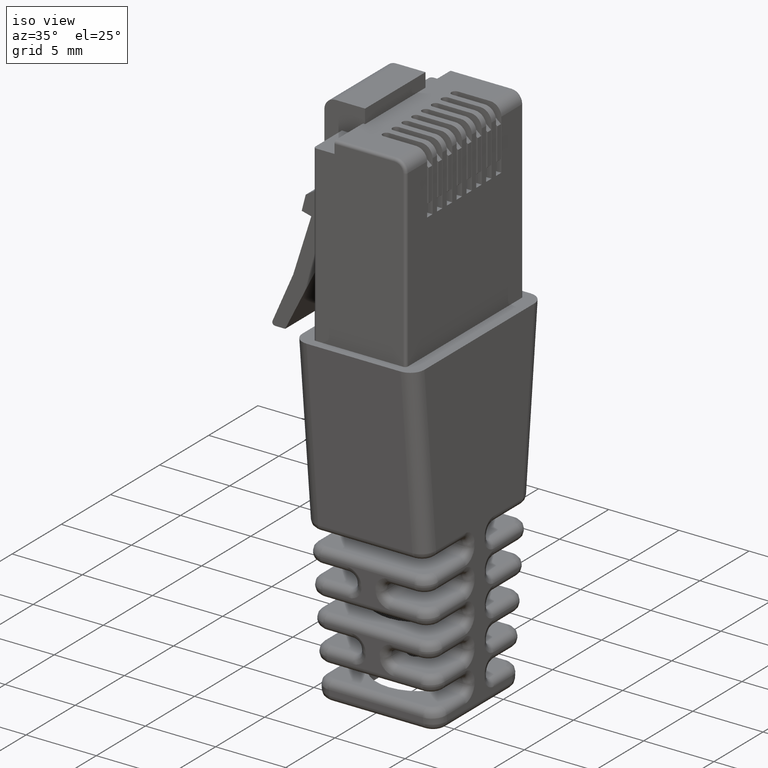
[diagram: clean part render]
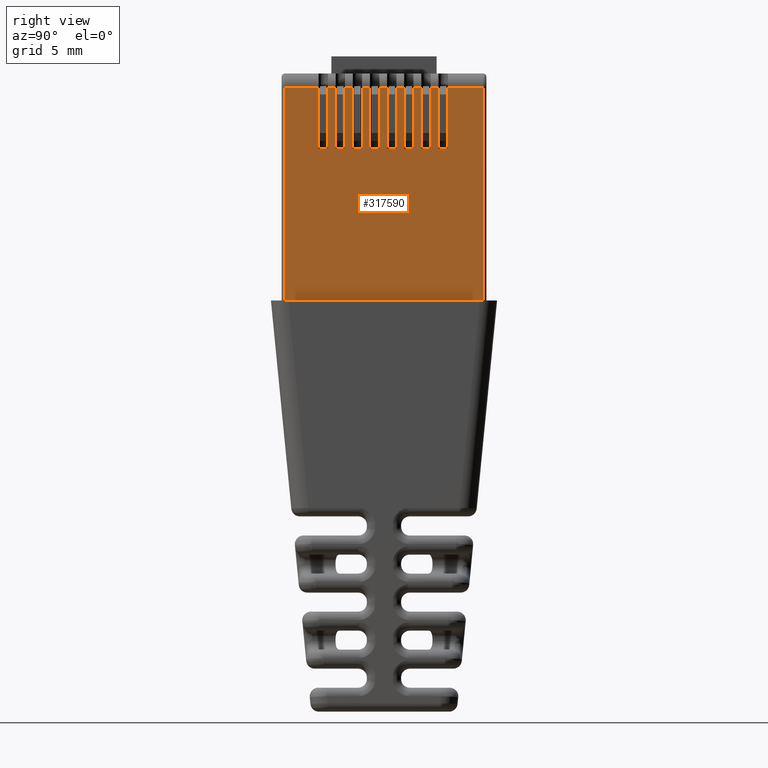
[diagram: tour spotlight — one face highlighted and labeled with its STEP entity id]
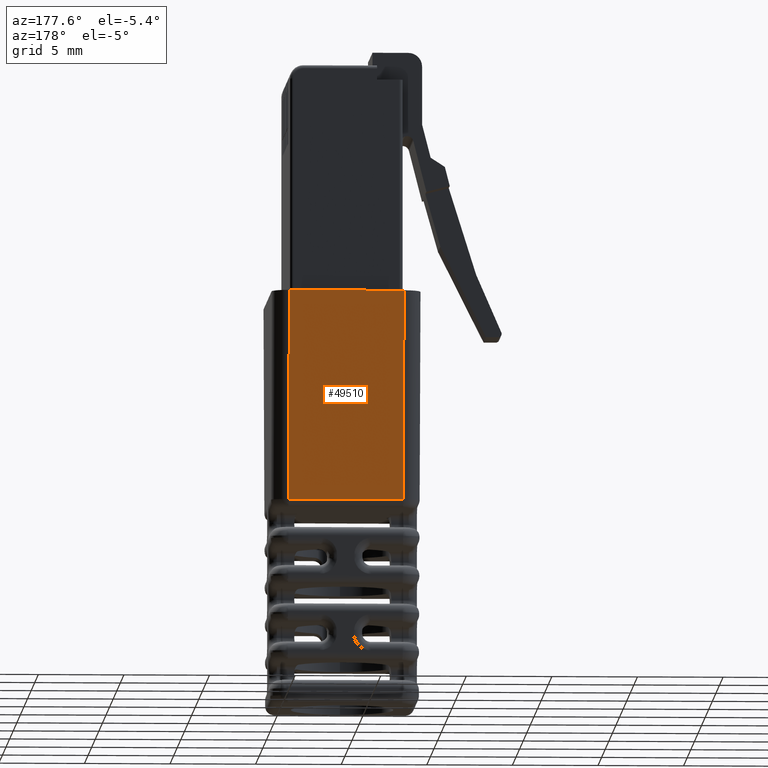
[diagram: tour spotlight — one face highlighted and labeled with its STEP entity id]
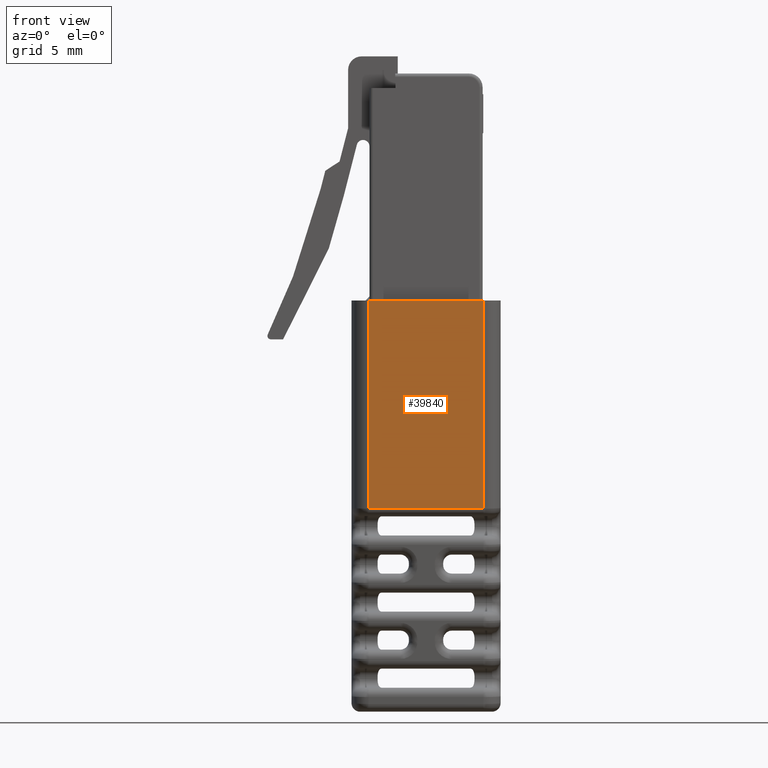
[diagram: tour spotlight — one face highlighted and labeled with its STEP entity id]
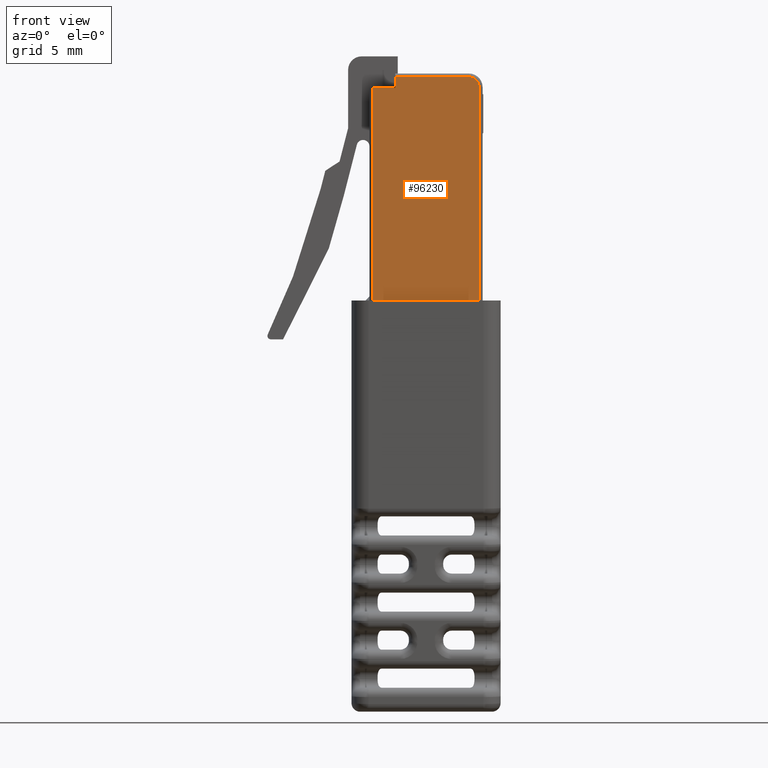
[diagram: tour spotlight — one face highlighted and labeled with its STEP entity id]
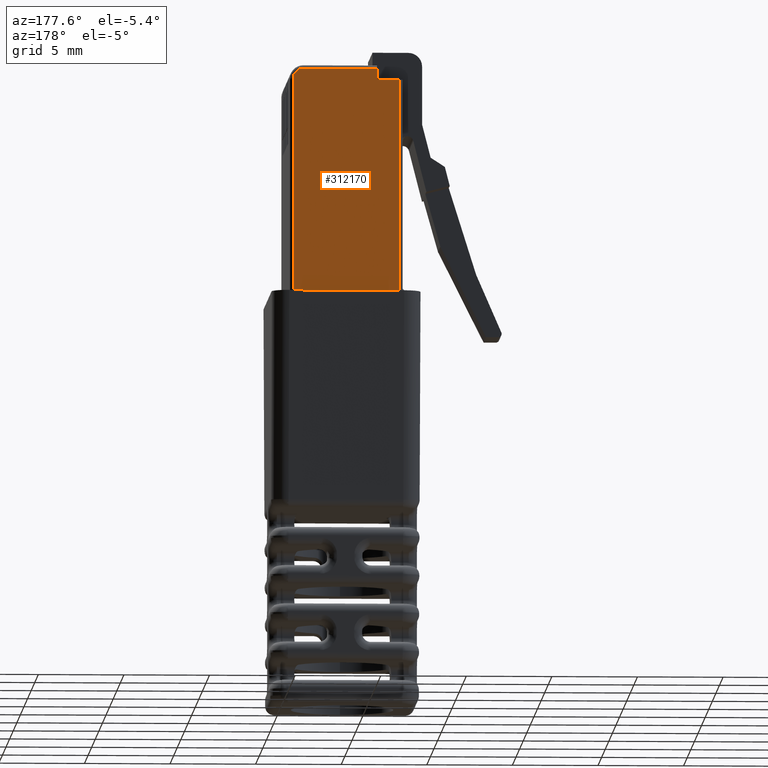
[diagram: tour spotlight — one face highlighted and labeled with its STEP entity id]
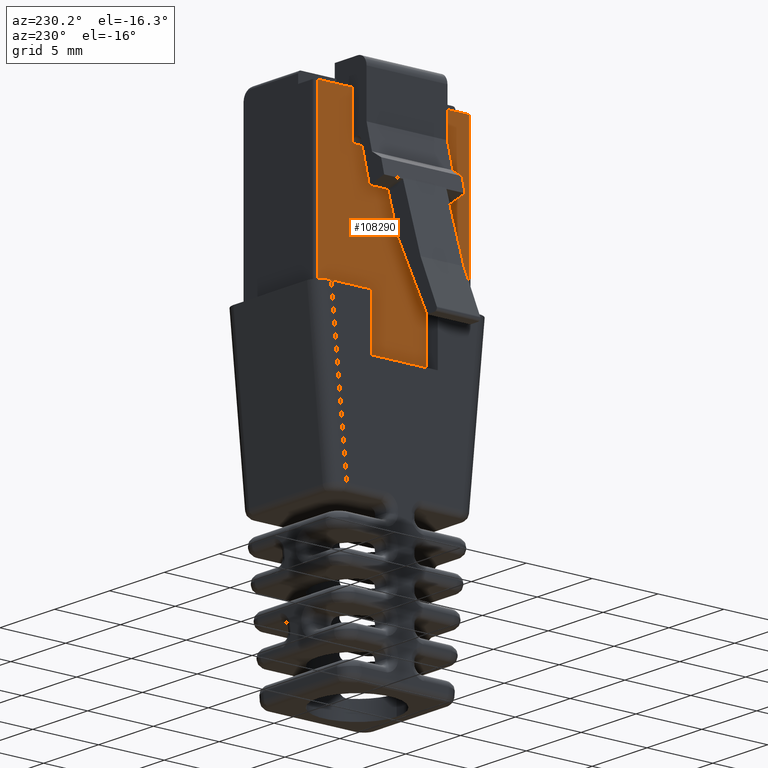
[diagram: tour spotlight — one face highlighted and labeled with its STEP entity id]
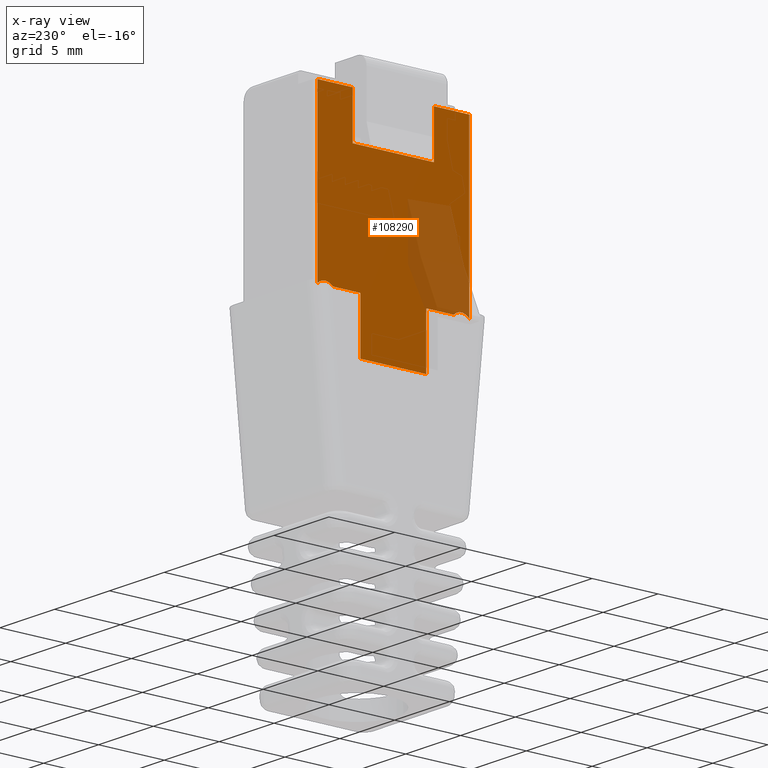
[diagram: x-ray of the same camera — body ghosted, this tour face saturated]
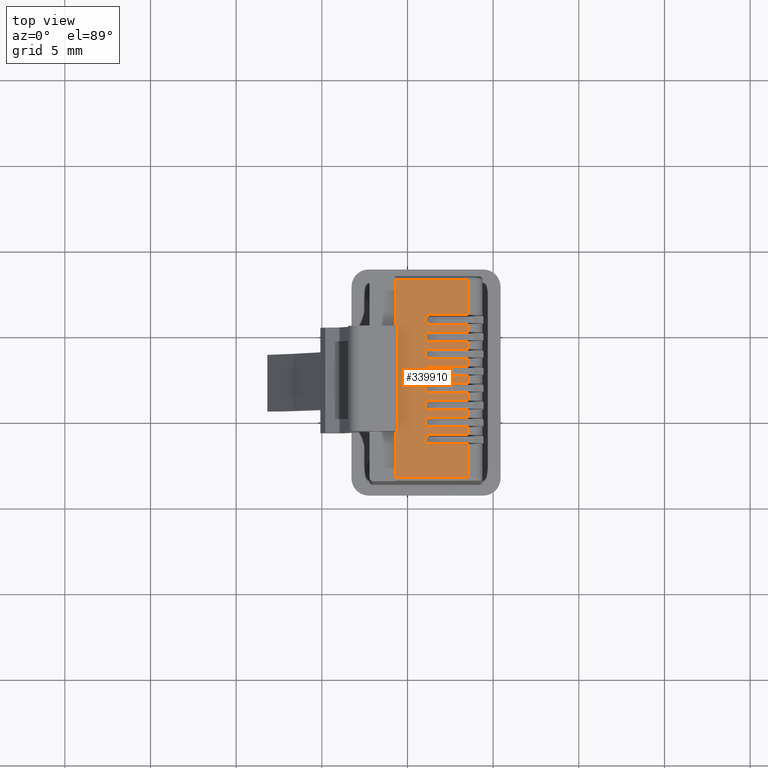
[diagram: tour spotlight — one face highlighted and labeled with its STEP entity id]
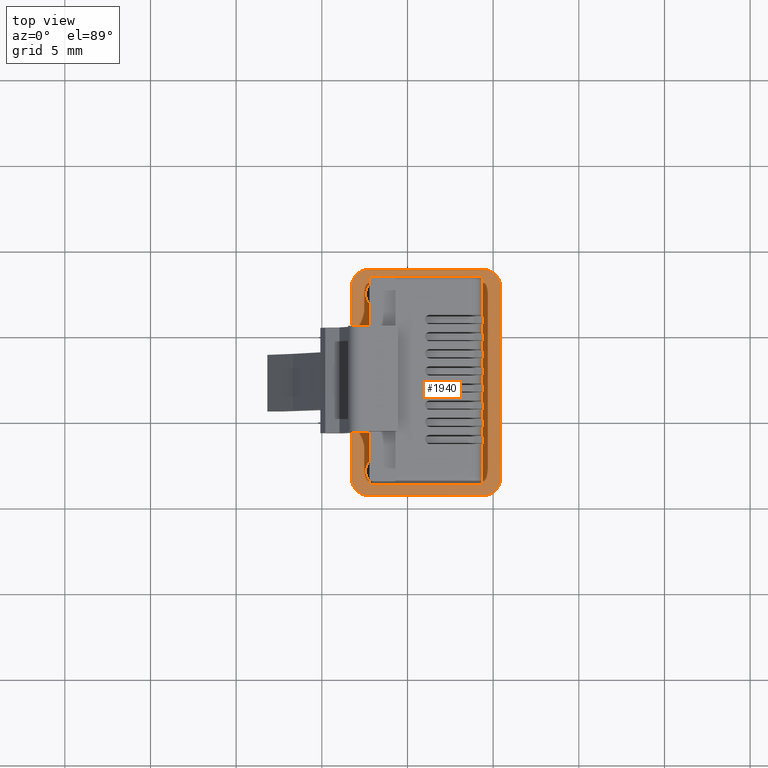
[diagram: tour spotlight — one face highlighted and labeled with its STEP entity id]
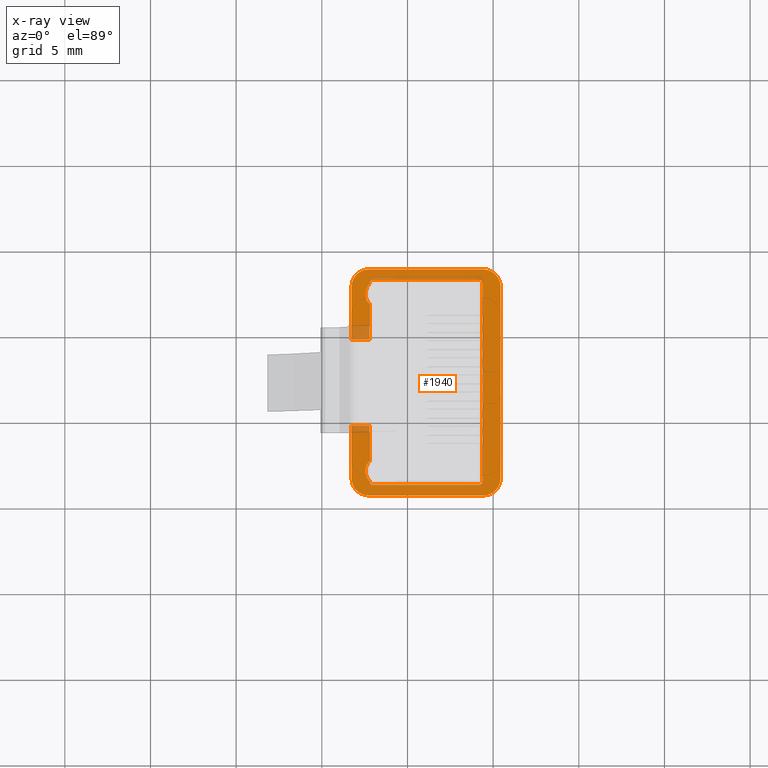
[diagram: x-ray of the same camera — body ghosted, this tour face saturated]
A machine part: a face-by-face anatomy tour. The part has 498 B-rep faces; the first image is the clean iso view, then the 8 largest visible faces are spotlighted one at a time (largest first), each with its STEP entity span.

Face 1 — right view, entity #317590. In plain terms, the highlighted planar face has unit normal (-1, 0, 0).
Definition (entity closure, byte-faithful):
#1100=CARTESIAN_POINT('',(17.2031426136379,1.31886962969768,0.));
#1110=VERTEX_POINT('',#1100);
#1140=CARTESIAN_POINT('',(0.,1.31886962969768,0.));
#1150=DIRECTION('',(-1.,-3.38963670212154E-32,0.));
#1160=VECTOR('',#1150,1.);
#1170=LINE('',#1140,#1160);
#1180=CARTESIAN_POINT('',(5.65314261363792,1.31886962969768,0.));
#1190=VERTEX_POINT('',#1180);
#1200=EDGE_CURVE('',#1110,#1190,#1170,.T.);
#91000=CARTESIAN_POINT('',(13.7031426136379,1.31886962969768,
-8.84999999999999));
#91010=VERTEX_POINT('',#91000);
#91040=CARTESIAN_POINT('',(6.55314261363792,1.31886962969767,
-8.84999999999999));
#91050=DIRECTION('',(1.,2.53235096277379E-32,-7.75732754385526E-17));
#91060=VECTOR('',#91050,1.);
#91070=LINE('',#91040,#91060);
#91080=CARTESIAN_POINT('',(14.2531426136379,1.31886962969768,
-8.84999999999999));
#91090=VERTEX_POINT('',#91080);
#91100=EDGE_CURVE('',#91010,#91090,#91070,.T.);
#93760=CARTESIAN_POINT('',(12.7031426136379,1.31886962969768,
-8.84999999999999));
#93770=VERTEX_POINT('',#93760);
#93800=CARTESIAN_POINT('',(13.2531426136379,1.31886962969768,
-8.84999999999999));
#93810=VERTEX_POINT('',#93800);
#93820=EDGE_CURVE('',#93770,#93810,#91070,.T.);
#310450=CARTESIAN_POINT('',(14.7031426136379,1.31886962969768,
-8.84999999999999));
#310460=VERTEX_POINT('',#310450);
#310490=CARTESIAN_POINT('',(15.2531426136379,1.31886962969768,
-8.84999999999999));
#310500=VERTEX_POINT('',#310490);
#310510=EDGE_CURVE('',#310460,#310500,#91070,.T.);
#315140=CARTESIAN_POINT('',(13.7031426136379,1.31886962969768,-12.45));
#315150=VERTEX_POINT('',#315140);
#315180=CARTESIAN_POINT('',(13.7031426136379,1.31886962969769,
-8.74999999999999));
#315190=DIRECTION('',(-1.66533453693773E-16,-3.88578058618805E-16,-1.));
#315200=VECTOR('',#315190,1000.);
#315210=LINE('',#315180,#315200);
#315220=EDGE_CURVE('',#91010,#315150,#315210,.T.);
#315270=CARTESIAN_POINT('',(17.2531426136379,1.31886962969768,-13.25));
#315280=DIRECTION('',(-3.38963670212153E-32,1.,-3.88578058618805E-16));
#315290=DIRECTION('',(1.66533453693773E-16,3.88578058618805E-16,1.));
#315300=AXIS2_PLACEMENT_3D('',#315270,#315280,#315290);
#315310=PLANE('',#315300);
#315320=CARTESIAN_POINT('',(17.2031426136379,1.31886962969768,-13.25));
#315330=DIRECTION('',(1.66533453693773E-16,3.88578058618805E-16,1.));
#315340=VECTOR('',#315330,1.);
#315350=LINE('',#315320,#315340);
#315360=CARTESIAN_POINT('',(17.2031426136379,1.31886962969768,-12.45));
#315370=VERTEX_POINT('',#315360);
#315380=EDGE_CURVE('',#315370,#1110,#315350,.T.);
#315390=ORIENTED_EDGE('',*,*,#315380,.T.);
#315400=CARTESIAN_POINT('',(11.4281426136379,1.31886962969768,-12.45));
#315410=DIRECTION('',(1.,-3.08148791101958E-32,-1.66533453693773E-16));
#315420=VECTOR('',#315410,1.);
#315430=LINE('',#315400,#315420);
#315440=CARTESIAN_POINT('',(15.2531426136379,1.31886962969768,-12.45));
#315450=VERTEX_POINT('',#315440);
#315460=EDGE_CURVE('',#315450,#315370,#315430,.T.);
#315470=ORIENTED_EDGE('',*,*,#315460,.T.);
#315480=CARTESIAN_POINT('',(15.2531426136379,1.31886962969768,
-8.74999999999999));
#315490=DIRECTION('',(-1.66533453693773E-16,-3.88578058618805E-16,-1.));
#315500=VECTOR('',#315490,1000.);
#315510=LINE('',#315480,#315500);
#315520=EDGE_CURVE('',#310500,#315450,#315510,.T.);
#315530=ORIENTED_EDGE('',*,*,#315520,.T.);
#315540=ORIENTED_EDGE('',*,*,#310510,.T.);
#315550=CARTESIAN_POINT('',(14.7031426136379,1.31886962969768,
-8.74999999999999));
#315560=DIRECTION('',(-1.66533453693773E-16,-3.88578058618805E-16,-1.));
#315570=VECTOR('',#315560,1000.);
#315580=LINE('',#315550,#315570);
#315590=CARTESIAN_POINT('',(14.7031426136379,1.31886962969768,-12.45));
#315600=VERTEX_POINT('',#315590);
#315610=EDGE_CURVE('',#310460,#315600,#315580,.T.);
#315620=ORIENTED_EDGE('',*,*,#315610,.F.);
#315630=CARTESIAN_POINT('',(11.4281426136379,1.31886962969768,-12.45));
#315640=DIRECTION('',(1.,-3.08148791101958E-32,-1.66533453693773E-16));
#315650=VECTOR('',#315640,1.);
#315660=LINE('',#315630,#315650);
#315670=CARTESIAN_POINT('',(14.2531426136379,1.31886962969768,-12.45));
#315680=VERTEX_POINT('',#315670);
#315690=EDGE_CURVE('',#315680,#315600,#315660,.T.);
#315700=ORIENTED_EDGE('',*,*,#315690,.T.);
#315710=CARTESIAN_POINT('',(14.2531426136379,1.31886962969768,
-8.74999999999999));
#315720=DIRECTION('',(-1.66533453693773E-16,-3.88578058618805E-16,-1.));
#315730=VECTOR('',#315720,1000.);
#315740=LINE('',#315710,#315730);
#315750=EDGE_CURVE('',#91090,#315680,#315740,.T.);
#315760=ORIENTED_EDGE('',*,*,#315750,.T.);
#315770=ORIENTED_EDGE('',*,*,#91100,.T.);
#315780=ORIENTED_EDGE('',*,*,#315220,.F.);
#315790=CARTESIAN_POINT('',(11.4281426136379,1.31886962969768,-12.45));
#315800=DIRECTION('',(1.,-3.08148791101958E-32,-1.66533453693773E-16));
#315810=VECTOR('',#315800,1.);
#315820=LINE('',#315790,#315810);
#315830=CARTESIAN_POINT('',(13.2531426136379,1.31886962969768,-12.45));
#315840=VERTEX_POINT('',#315830);
#315850=EDGE_CURVE('',#315840,#315150,#315820,.T.);
#315860=ORIENTED_EDGE('',*,*,#315850,.T.);
#315870=CARTESIAN_POINT('',(13.2531426136379,1.31886962969769,
-8.74999999999999));
#315880=DIRECTION('',(-1.66533453693773E-16,-3.88578058618805E-16,-1.));
#315890=VECTOR('',#315880,1000.);
#315900=LINE('',#315870,#315890);
#315910=EDGE_CURVE('',#93810,#315840,#315900,.T.);
#315920=ORIENTED_EDGE('',*,*,#315910,.T.);
#315930=ORIENTED_EDGE('',*,*,#93820,.T.);
#315940=CARTESIAN_POINT('',(12.7031426136379,1.31886962969769,
-8.74999999999999));
#315950=DIRECTION('',(-1.66533453693773E-16,-3.88578058618805E-16,-1.));
#315960=VECTOR('',#315950,1000.);
#315970=LINE('',#315940,#315960);
#315980=CARTESIAN_POINT('',(12.7031426136379,1.31886962969768,-12.45));
#315990=VERTEX_POINT('',#315980);
#316000=EDGE_CURVE('',#93770,#315990,#315970,.T.);
#316010=ORIENTED_EDGE('',*,*,#316000,.F.);
#316020=CARTESIAN_POINT('',(11.4281426136379,1.31886962969768,-12.45));
#316030=DIRECTION('',(1.,-3.08148791101958E-32,-1.66533453693773E-16));
#316040=VECTOR('',#316030,1.);
#316050=LINE('',#316020,#316040);
#316060=CARTESIAN_POINT('',(12.2531426136379,1.31886962969768,-12.45));
#316070=VERTEX_POINT('',#316060);
#316080=EDGE_CURVE('',#316070,#315990,#316050,.T.);
#316090=ORIENTED_EDGE('',*,*,#316080,.T.);
#316100=CARTESIAN_POINT('',(12.2531426136379,1.3188696296977,
-8.74999999999999));
#316110=DIRECTION('',(-1.66533453693773E-16,-3.88578058618805E-16,-1.));
#316120=VECTOR('',#316110,1000.);
#316130=LINE('',#316100,#316120);
#316140=CARTESIAN_POINT('',(12.2531426136379,1.31886962969768,
-8.84999999999999));
#316150=VERTEX_POINT('',#316140);
#316160=EDGE_CURVE('',#316150,#316070,#316130,.T.);
#316170=ORIENTED_EDGE('',*,*,#316160,.T.);
#316180=CARTESIAN_POINT('',(11.7031426136379,1.31886962969768,
-8.84999999999999));
#316190=VERTEX_POINT('',#316180);
#316200=EDGE_CURVE('',#316190,#316150,#91070,.T.);
#316210=ORIENTED_EDGE('',*,*,#316200,.T.);
#316220=CARTESIAN_POINT('',(11.7031426136379,1.3188696296977,
-8.74999999999999));
#316230=DIRECTION('',(-1.66533453693773E-16,-3.88578058618805E-16,-1.));
#316240=VECTOR('',#316230,1000.);
#316250=LINE('',#316220,#316240);
#316260=CARTESIAN_POINT('',(11.7031426136379,1.31886962969768,-12.45));
#316270=VERTEX_POINT('',#316260);
#316280=EDGE_CURVE('',#316190,#316270,#316250,.T.);
#316290=ORIENTED_EDGE('',*,*,#316280,.F.);
#316300=CARTESIAN_POINT('',(11.4281426136379,1.31886962969768,-12.45));
#316310=DIRECTION('',(1.,-3.08148791101958E-32,-1.66533453693773E-16));
#316320=VECTOR('',#316310,1.);
#316330=LINE('',#316300,#316320);
#316340=CARTESIAN_POINT('',(11.2531426136379,1.31886962969768,-12.45));
#316350=VERTEX_POINT('',#316340);
#316360=EDGE_CURVE('',#316350,#316270,#316330,.T.);
#316370=ORIENTED_EDGE('',*,*,#316360,.T.);
#316380=CARTESIAN_POINT('',(11.2531426136379,1.3188696296977,
-8.74999999999999));
#316390=DIRECTION('',(-1.66533453693773E-16,-3.88578058618805E-16,-1.));
#316400=VECTOR('',#316390,1000.);
#316410=LINE('',#316380,#316400);
#316420=CARTESIAN_POINT('',(11.2531426136379,1.31886962969768,
-8.84999999999999));
#316430=VERTEX_POINT('',#316420);
#316440=EDGE_CURVE('',#316430,#316350,#316410,.T.);
#316450=ORIENTED_EDGE('',*,*,#316440,.T.);
#316460=CARTESIAN_POINT('',(10.7031426136379,1.31886962969768,
-8.84999999999999));
#316470=VERTEX_POINT('',#316460);
#316480=EDGE_CURVE('',#316470,#316430,#91070,.T.);
#316490=ORIENTED_EDGE('',*,*,#316480,.T.);
#316500=CARTESIAN_POINT('',(10.7031426136379,1.31886962969771,
-8.74999999999999));
#316510=DIRECTION('',(-1.66533453693773E-16,-3.88578058618805E-16,-1.));
#316520=VECTOR('',#316510,1000.);
#316530=LINE('',#316500,#316520);
#316540=CARTESIAN_POINT('',(10.7031426136379,1.31886962969768,-12.45));
#316550=VERTEX_POINT('',#316540);
#316560=EDGE_CURVE('',#316470,#316550,#316530,.T.);
#316570=ORIENTED_EDGE('',*,*,#316560,.F.);
#316580=CARTESIAN_POINT('',(11.4281426136379,1.31886962969768,-12.45));
#316590=DIRECTION('',(1.,-3.08148791101958E-32,-1.66533453693773E-16));
#316600=VECTOR('',#316590,1.);
#316610=LINE('',#316580,#316600);
#316620=CARTESIAN_POINT('',(10.2531426136379,1.31886962969768,-12.45));
#316630=VERTEX_POINT('',#316620);
#316640=EDGE_CURVE('',#316630,#316550,#316610,.T.);
#316650=ORIENTED_EDGE('',*,*,#316640,.T.);
#316660=CARTESIAN_POINT('',(10.2531426136379,1.31886962969771,
-8.74999999999999));
#316670=DIRECTION('',(-1.66533453693773E-16,-3.88578058618805E-16,-1.));
#316680=VECTOR('',#316670,1000.);
#316690=LINE('',#316660,#316680);
#316700=CARTESIAN_POINT('',(10.2531426136379,1.31886962969768,
-8.84999999999999));
#316710=VERTEX_POINT('',#316700);
#316720=EDGE_CURVE('',#316710,#316630,#316690,.T.);
#316730=ORIENTED_EDGE('',*,*,#316720,.T.);
#316740=CARTESIAN_POINT('',(9.70314261363792,1.31886962969768,
-8.84999999999999));
#316750=VERTEX_POINT('',#316740);
#316760=EDGE_CURVE('',#316750,#316710,#91070,.T.);
#316770=ORIENTED_EDGE('',*,*,#316760,.T.);
#316780=CARTESIAN_POINT('',(9.70314261363792,1.31886962969771,
-8.74999999999999));
#316790=DIRECTION('',(-1.66533453693773E-16,-3.88578058618805E-16,-1.));
#316800=VECTOR('',#316790,1000.);
#316810=LINE('',#316780,#316800);
#316820=CARTESIAN_POINT('',(9.70314261363792,1.31886962969768,-12.45));
#316830=VERTEX_POINT('',#316820);
#316840=EDGE_CURVE('',#316750,#316830,#316810,.T.);
#316850=ORIENTED_EDGE('',*,*,#316840,.F.);
#316860=CARTESIAN_POINT('',(11.4281426136379,1.31886962969768,-12.45));
#316870=DIRECTION('',(1.,-3.08148791101958E-32,-1.66533453693773E-16));
#316880=VECTOR('',#316870,1.);
#316890=LINE('',#316860,#316880);
#316900=CARTESIAN_POINT('',(9.25314261363792,1.31886962969768,-12.45));
#316910=VERTEX_POINT('',#316900);
#316920=EDGE_CURVE('',#316910,#316830,#316890,.T.);
#316930=ORIENTED_EDGE('',*,*,#316920,.T.);
#316940=CARTESIAN_POINT('',(9.25314261363792,1.31886962969772,
-8.74999999999999));
#316950=DIRECTION('',(-1.66533453693773E-16,-3.88578058618805E-16,-1.));
#316960=VECTOR('',#316950,1000.);
#316970=LINE('',#316940,#316960);
#316980=CARTESIAN_POINT('',(9.25314261363792,1.31886962969768,
-8.84999999999999));
#316990=VERTEX_POINT('',#316980);
#317000=EDGE_CURVE('',#316990,#316910,#316970,.T.);
#317010=ORIENTED_EDGE('',*,*,#317000,.T.);
#317020=CARTESIAN_POINT('',(8.70314261363792,1.31886962969768,
-8.84999999999999));
#317030=VERTEX_POINT('',#317020);
#317040=EDGE_CURVE('',#317030,#316990,#91070,.T.);
#317050=ORIENTED_EDGE('',*,*,#317040,.T.);
#317060=CARTESIAN_POINT('',(8.70314261363792,1.31886962969772,
-8.74999999999999));
#317070=DIRECTION('',(-1.66533453693773E-16,-3.88578058618805E-16,-1.));
#317080=VECTOR('',#317070,1000.);
#317090=LINE('',#317060,#317080);
#317100=CARTESIAN_POINT('',(8.70314261363792,1.31886962969768,-12.45));
#317110=VERTEX_POINT('',#317100);
#317120=EDGE_CURVE('',#317030,#317110,#317090,.T.);
#317130=ORIENTED_EDGE('',*,*,#317120,.F.);
#317140=CARTESIAN_POINT('',(11.4281426136379,1.31886962969768,-12.45));
#317150=DIRECTION('',(1.,-3.08148791101958E-32,-1.66533453693773E-16));
#317160=VECTOR('',#317150,1.);
#317170=LINE('',#317140,#317160);
#317180=CARTESIAN_POINT('',(8.25314261363792,1.31886962969768,-12.45));
#317190=VERTEX_POINT('',#317180);
#317200=EDGE_CURVE('',#317190,#317110,#317170,.T.);
#317210=ORIENTED_EDGE('',*,*,#317200,.T.);
#317220=CARTESIAN_POINT('',(8.25314261363792,1.31886962969773,
-8.74999999999999));
#317230=DIRECTION('',(-1.66533453693773E-16,-3.88578058618805E-16,-1.));
#317240=VECTOR('',#317230,1000.);
#317250=LINE('',#317220,#317240);
#317260=CARTESIAN_POINT('',(8.25314261363792,1.31886962969768,
-8.84999999999999));
#317270=VERTEX_POINT('',#317260);
#317280=EDGE_CURVE('',#317270,#317190,#317250,.T.);
#317290=ORIENTED_EDGE('',*,*,#317280,.T.);
#317300=CARTESIAN_POINT('',(7.70314261363792,1.31886962969768,
-8.84999999999999));
#317310=VERTEX_POINT('',#317300);
#317320=EDGE_CURVE('',#317310,#317270,#91070,.T.);
#317330=ORIENTED_EDGE('',*,*,#317320,.T.);
#317340=CARTESIAN_POINT('',(7.70314261363792,1.31886962969773,
-8.74999999999999));
#317350=DIRECTION('',(-1.66533453693773E-16,-3.88578058618805E-16,-1.));
#317360=VECTOR('',#317350,1000.);
#317370=LINE('',#317340,#317360);
#317380=CARTESIAN_POINT('',(7.70314261363792,1.31886962969768,-12.45));
#317390=VERTEX_POINT('',#317380);
#317400=EDGE_CURVE('',#317310,#317390,#317370,.T.);
#317410=ORIENTED_EDGE('',*,*,#317400,.F.);
#317420=CARTESIAN_POINT('',(11.4281426136379,1.31886962969768,-12.45));
#317430=DIRECTION('',(1.,-3.08148791101958E-32,-1.66533453693773E-16));
#317440=VECTOR('',#317430,1.);
#317450=LINE('',#317420,#317440);
#317460=CARTESIAN_POINT('',(5.65314261363792,1.31886962969768,-12.45));
#317470=VERTEX_POINT('',#317460);
#317480=EDGE_CURVE('',#317470,#317390,#317450,.T.);
#317490=ORIENTED_EDGE('',*,*,#317480,.T.);
#317500=CARTESIAN_POINT('',(5.65314261363792,1.31886962969768,-13.25));
#317510=DIRECTION('',(1.66533453693773E-16,3.88578058618805E-16,1.));
#317520=VECTOR('',#317510,1.);
#317530=LINE('',#317500,#317520);
#317540=EDGE_CURVE('',#317470,#1190,#317530,.T.);
#317550=ORIENTED_EDGE('',*,*,#317540,.F.);
#317560=ORIENTED_EDGE('',*,*,#1200,.T.);
#317570=EDGE_LOOP('',(#317560,#317550,#317490,#317410,#317330,#317290,
#317210,#317130,#317050,#317010,#316930,#316850,#316770,#316730,#316650,
#316570,#316490,#316450,#316370,#316290,#316210,#316170,#316090,#316010,
#315930,#315920,#315860,#315780,#315770,#315760,#315700,#315620,#315540,
#315530,#315470,#315390));
#317580=FACE_OUTER_BOUND('',#317570,.T.);
#317590=ADVANCED_FACE('',(#317580),#315310,.F.);

Face 2 — auxiliary view, entity #49510. In plain terms, the highlighted planar face has unit normal (0, 0.9952, -0.0975).
Definition (entity closure, byte-faithful):
#110=CARTESIAN_POINT('',(4.82814261363791,1.26886962969767,0.));
#120=VERTEX_POINT('',#110);
#1820=CARTESIAN_POINT('',(4.82814261363791,7.96886962969767,0.));
#1830=VERTEX_POINT('',#1820);
#1860=CARTESIAN_POINT('',(4.82814261363792,0.,0.));
#1870=DIRECTION('',(0.,-1.,0.));
#1880=VECTOR('',#1870,1.);
#1890=LINE('',#1860,#1880);
#1900=EDGE_CURVE('',#1830,#120,#1890,.T.);
#39920=CARTESIAN_POINT('',(4.82814261363792,8.96886962969767,0.));
#39930=DIRECTION('',(-0.995240361375818,0.,0.0974506187180489));
#39940=DIRECTION('',(-0.0974506187180489,0.,-0.995240361375818));
#39950=AXIS2_PLACEMENT_3D('',#39920,#39930,#39940);
#39960=PLANE('',#39950);
#49260=CARTESIAN_POINT('',(4.83768465338739,1.26886962969767,
0.0974506187180489));
#49270=DIRECTION('',(-0.0974506187180489,0.,-0.995240361375818));
#49280=VECTOR('',#49270,1.);
#49290=LINE('',#49260,#49280);
#49300=CARTESIAN_POINT('',(6.01770530017932,1.26886962969767,
12.148725309359));
#49310=VERTEX_POINT('',#49300);
#49320=EDGE_CURVE('',#49310,#120,#49290,.T.);
#49330=ORIENTED_EDGE('',*,*,#49320,.F.);
#49340=ORIENTED_EDGE('',*,*,#1900,.T.);
#49350=CARTESIAN_POINT('',(5.44501761363792,7.96886962969767,6.3));
#49360=DIRECTION('',(0.0974506187180489,0.,0.995240361375818));
#49370=VECTOR('',#49360,1.);
#49380=LINE('',#49350,#49370);
#49390=CARTESIAN_POINT('',(6.01770530017932,7.96886962969767,
12.148725309359));
#49400=VERTEX_POINT('',#49390);
#49410=EDGE_CURVE('',#1830,#49400,#49380,.T.);
#49420=ORIENTED_EDGE('',*,*,#49410,.F.);
#49430=CARTESIAN_POINT('',(6.01770530017932,0.,12.148725309359));
#49440=DIRECTION('',(0.,1.,0.));
#49450=VECTOR('',#49440,1.);
#49460=LINE('',#49430,#49450);
#49470=EDGE_CURVE('',#49310,#49400,#49460,.T.);
#49480=ORIENTED_EDGE('',*,*,#49470,.T.);
#49490=EDGE_LOOP('',(#49480,#49420,#49340,#49330));
#49500=FACE_OUTER_BOUND('',#49490,.T.);
#49510=ADVANCED_FACE('',(#49500),#39960,.T.);

Face 3 — front view, entity #39840. In plain terms, the highlighted planar face has unit normal (0, -0.9952, -0.0975).
Definition (entity closure, byte-faithful):
#300=CARTESIAN_POINT('',(18.0281426136379,1.26886962969767,0.));
#310=VERTEX_POINT('',#300);
#340=CARTESIAN_POINT('',(18.0281426136379,0.,0.));
#350=DIRECTION('',(0.,1.,0.));
#360=VECTOR('',#350,1.);
#370=LINE('',#340,#360);
#380=CARTESIAN_POINT('',(18.0281426136379,7.96886962969767,0.));
#390=VERTEX_POINT('',#380);
#400=EDGE_CURVE('',#310,#390,#370,.T.);
#39540=CARTESIAN_POINT('',(15.6781426136379,8.96886962969767,24.));
#39550=DIRECTION('',(0.995240361375818,0.,0.0974506187180489));
#39560=DIRECTION('',(-0.0974506187180489,0.,0.995240361375818));
#39570=AXIS2_PLACEMENT_3D('',#39540,#39550,#39560);
#39580=PLANE('',#39570);
#39590=CARTESIAN_POINT('',(17.4112676136379,7.96886962969767,6.3));
#39600=DIRECTION('',(0.0974506187180489,0.,-0.995240361375818));
#39610=VECTOR('',#39600,1.);
#39620=LINE('',#39590,#39610);
#39630=CARTESIAN_POINT('',(16.8385799270965,7.96886962969767,
12.148725309359));
#39640=VERTEX_POINT('',#39630);
#39650=EDGE_CURVE('',#39640,#390,#39620,.T.);
#39660=ORIENTED_EDGE('',*,*,#39650,.F.);
#39670=ORIENTED_EDGE('',*,*,#400,.T.);
#39680=CARTESIAN_POINT('',(18.0186005738884,1.26886962969767,
0.0974506187180489));
#39690=DIRECTION('',(-0.0974506187180489,0.,0.995240361375818));
#39700=VECTOR('',#39690,1.);
#39710=LINE('',#39680,#39700);
#39720=CARTESIAN_POINT('',(16.8385799270965,1.26886962969767,
12.148725309359));
#39730=VERTEX_POINT('',#39720);
#39740=EDGE_CURVE('',#310,#39730,#39710,.T.);
#39750=ORIENTED_EDGE('',*,*,#39740,.F.);
#39760=CARTESIAN_POINT('',(16.8385799270965,0.,12.148725309359));
#39770=DIRECTION('',(0.,-1.,0.));
#39780=VECTOR('',#39770,1.);
#39790=LINE('',#39760,#39780);
#39800=EDGE_CURVE('',#39640,#39730,#39790,.T.);
#39810=ORIENTED_EDGE('',*,*,#39800,.T.);
#39820=EDGE_LOOP('',(#39810,#39750,#39670,#39660));
#39830=FACE_OUTER_BOUND('',#39820,.T.);
#39840=ADVANCED_FACE('',(#39830),#39580,.T.);

Face 4 — front view, entity #96230. In plain terms, the highlighted planar face has unit normal (-0, -1, 0).
Definition (entity closure, byte-faithful):
#930=CARTESIAN_POINT('',(17.4031426136379,7.71886962969769,0.));
#940=VERTEX_POINT('',#930);
#970=CARTESIAN_POINT('',(17.4031426136379,0.,0.));
#980=DIRECTION('',(3.08148791101957E-32,1.,0.));
#990=VECTOR('',#980,1.);
#1000=LINE('',#970,#990);
#1010=CARTESIAN_POINT('',(17.4031426136379,1.51886962969768,0.));
#1020=VERTEX_POINT('',#1010);
#1030=EDGE_CURVE('',#1020,#940,#1000,.T.);
#95680=CARTESIAN_POINT('',(17.4031426136379,7.91886962969769,
8.60000000000001));
#95690=DIRECTION('',(1.,-3.08148791101957E-32,-1.66533453693773E-16));
#95700=DIRECTION('',(1.66533453693773E-16,3.88578058618805E-16,1.));
#95710=AXIS2_PLACEMENT_3D('',#95680,#95690,#95700);
#95720=PLANE('',#95710);
#95730=CARTESIAN_POINT('',(17.4031426136379,2.11886962969768,-12.45));
#95740=DIRECTION('',(1.,-3.08148791101958E-32,-1.66533453693773E-16));
#95750=DIRECTION('',(-3.38963670212154E-32,1.,-3.88578058618805E-16));
#95760=AXIS2_PLACEMENT_3D('',#95730,#95740,#95750);
#95770=CIRCLE('',#95760,0.6);
#95780=CARTESIAN_POINT('',(17.4031426136379,1.51886962969768,-12.45));
#95790=VERTEX_POINT('',#95780);
#95800=CARTESIAN_POINT('',(17.4031426136379,2.11886962969768,-13.05));
#95810=VERTEX_POINT('',#95800);
#95820=EDGE_CURVE('',#95790,#95810,#95770,.T.);
#95830=ORIENTED_EDGE('',*,*,#95820,.T.);
#95840=CARTESIAN_POINT('',(17.4031426136379,1.51886962969768,-13.25));
#95850=DIRECTION('',(1.66533453693773E-16,3.88578058618805E-16,1.));
#95860=VECTOR('',#95850,1.);
#95870=LINE('',#95840,#95860);
#95880=EDGE_CURVE('',#95790,#1020,#95870,.T.);
#95890=ORIENTED_EDGE('',*,*,#95880,.F.);
#95900=ORIENTED_EDGE('',*,*,#1030,.F.);
#95910=CARTESIAN_POINT('',(17.4031426136379,7.71886962969768,-13.25));
#95920=DIRECTION('',(-1.66533453693773E-16,-3.88578058618805E-16,-1.));
#95930=VECTOR('',#95920,1.);
#95940=LINE('',#95910,#95930);
#95950=CARTESIAN_POINT('',(17.4031426136379,7.71886962969768,-12.4));
#95960=VERTEX_POINT('',#95950);
#95970=EDGE_CURVE('',#940,#95960,#95940,.T.);
#95980=ORIENTED_EDGE('',*,*,#95970,.F.);
#95990=CARTESIAN_POINT('',(17.4031426136379,7.91886962969768,-12.4));
#96000=DIRECTION('',(-3.38963670212154E-32,1.,-3.88578058618805E-16));
#96010=VECTOR('',#96000,1.);
#96020=LINE('',#95990,#96010);
#96030=CARTESIAN_POINT('',(17.4031426136379,6.41886962969768,-12.4));
#96040=VERTEX_POINT('',#96030);
#96050=EDGE_CURVE('',#96040,#95960,#96020,.T.);
#96060=ORIENTED_EDGE('',*,*,#96050,.T.);
#96070=CARTESIAN_POINT('',(17.4031426136379,6.41886962969768,-13.25));
#96080=DIRECTION('',(1.66533453693773E-16,3.88578058618805E-16,1.));
#96090=VECTOR('',#96080,1.);
#96100=LINE('',#96070,#96090);
#96110=CARTESIAN_POINT('',(17.4031426136379,6.41886962969768,-13.05));
#96120=VERTEX_POINT('',#96110);
#96130=EDGE_CURVE('',#96120,#96040,#96100,.T.);
#96140=ORIENTED_EDGE('',*,*,#96130,.T.);
#96150=CARTESIAN_POINT('',(17.4031426136379,7.91886962969768,-13.05));
#96160=DIRECTION('',(3.38963670212154E-32,-1.,3.88578058618805E-16));
#96170=VECTOR('',#96160,1.);
#96180=LINE('',#96150,#96170);
#96190=EDGE_CURVE('',#96120,#95810,#96180,.T.);
#96200=ORIENTED_EDGE('',*,*,#96190,.F.);
#96210=EDGE_LOOP('',(#96200,#96140,#96060,#95980,#95900,#95890,#95830));
#96220=FACE_OUTER_BOUND('',#96210,.T.);
#96230=ADVANCED_FACE('',(#96220),#95720,.T.);

Face 5 — auxiliary view, entity #312170. In plain terms, the highlighted planar face has unit normal (-0, -1, 0).
Definition (entity closure, byte-faithful):
#1270=CARTESIAN_POINT('',(5.45314261363792,1.51886962969768,0.));
#1280=VERTEX_POINT('',#1270);
#1310=CARTESIAN_POINT('',(5.45314261363792,0.,0.));
#1320=DIRECTION('',(3.08148791101957E-32,1.,0.));
#1330=VECTOR('',#1320,1.);
#1340=LINE('',#1310,#1330);
#1350=CARTESIAN_POINT('',(5.45314261363792,7.71886962969769,0.));
#1360=VERTEX_POINT('',#1350);
#1370=EDGE_CURVE('',#1280,#1360,#1340,.T.);
#92280=CARTESIAN_POINT('',(5.45314261363792,6.41886962969768,-12.4));
#92290=VERTEX_POINT('',#92280);
#92550=CARTESIAN_POINT('',(5.45314261363792,7.71886962969768,-12.4));
#92560=VERTEX_POINT('',#92550);
#92590=CARTESIAN_POINT('',(5.45314261363792,7.91886962969768,-12.4));
#92600=DIRECTION('',(-3.38963670212154E-32,1.,-3.88578058618805E-16));
#92610=VECTOR('',#92600,1.);
#92620=LINE('',#92590,#92610);
#92630=EDGE_CURVE('',#92290,#92560,#92620,.T.);
#311640=CARTESIAN_POINT('',(5.45314261363792,7.71886962969768,-13.25));
#311650=DIRECTION('',(1.66533453693773E-16,3.88578058618805E-16,1.));
#311660=VECTOR('',#311650,1.);
#311670=LINE('',#311640,#311660);
#311680=EDGE_CURVE('',#92560,#1360,#311670,.T.);
#311760=CARTESIAN_POINT('',(5.45314261363792,7.91886962969769,
8.60000000000001));
#311770=DIRECTION('',(1.,-3.08148791101957E-32,-1.66533453693773E-16));
#311780=DIRECTION('',(1.66533453693773E-16,3.88578058618805E-16,1.));
#311790=AXIS2_PLACEMENT_3D('',#311760,#311770,#311780);
#311800=PLANE('',#311790);
#311810=CARTESIAN_POINT('',(5.45314261363792,1.51886962969768,-13.25));
#311820=DIRECTION('',(1.66533453693773E-16,3.88578058618805E-16,1.));
#311830=VECTOR('',#311820,1.);
#311840=LINE('',#311810,#311830);
#311850=CARTESIAN_POINT('',(5.45314261363792,1.51886962969768,-12.45));
#311860=VERTEX_POINT('',#311850);
#311870=EDGE_CURVE('',#311860,#1280,#311840,.T.);
#311880=ORIENTED_EDGE('',*,*,#311870,.T.);
#311890=CARTESIAN_POINT('',(5.45314261363792,2.11886962969768,-12.45));
#311900=DIRECTION('',(1.,-3.08148791101958E-32,-1.66533453693773E-16));
#311910=DIRECTION('',(-3.38963670212154E-32,1.,-3.88578058618805E-16));
#311920=AXIS2_PLACEMENT_3D('',#311890,#311900,#311910);
#311930=CIRCLE('',#311920,0.6);
#311940=CARTESIAN_POINT('',(5.45314261363792,2.11886962969768,-13.05));
#311950=VERTEX_POINT('',#311940);
#311960=EDGE_CURVE('',#311860,#311950,#311930,.T.);
#311970=ORIENTED_EDGE('',*,*,#311960,.F.);
#311980=CARTESIAN_POINT('',(5.45314261363792,7.91886962969768,-13.05));
#311990=DIRECTION('',(-3.38963670212154E-32,1.,-3.88578058618805E-16));
#312000=VECTOR('',#311990,1.);
#312010=LINE('',#311980,#312000);
#312020=CARTESIAN_POINT('',(5.45314261363792,6.41886962969768,-13.05));
#312030=VERTEX_POINT('',#312020);
#312040=EDGE_CURVE('',#311950,#312030,#312010,.T.);
#312050=ORIENTED_EDGE('',*,*,#312040,.F.);
#312060=CARTESIAN_POINT('',(5.45314261363792,6.41886962969768,-13.25));
#312070=DIRECTION('',(1.66533453693773E-16,3.88578058618805E-16,1.));
#312080=VECTOR('',#312070,1.);
#312090=LINE('',#312060,#312080);
#312100=EDGE_CURVE('',#312030,#92290,#312090,.T.);
#312110=ORIENTED_EDGE('',*,*,#312100,.F.);
#312120=ORIENTED_EDGE('',*,*,#92630,.F.);
#312130=ORIENTED_EDGE('',*,*,#311680,.F.);
#312140=ORIENTED_EDGE('',*,*,#1370,.T.);
#312150=EDGE_LOOP('',(#312140,#312130,#312120,#312110,#312050,#311970,
#311880));
#312160=FACE_OUTER_BOUND('',#312150,.T.);
#312170=ADVANCED_FACE('',(#312160),#311800,.F.);

Face 6 — auxiliary view, entity #108290. An x-ray twin of the same camera follows (body ghosted, this face saturated) — the face is partly hidden behind the body. In plain terms, the highlighted planar face has unit normal (1, -0, -0).
Definition (entity closure, byte-faithful):
#630=CARTESIAN_POINT('',(13.9281426136379,7.91886962969768,0.));
#640=VERTEX_POINT('',#630);
#670=CARTESIAN_POINT('',(0.,7.91886962969769,0.));
#680=DIRECTION('',(1.,3.38963670212154E-32,0.));
#690=VECTOR('',#680,1.);
#700=LINE('',#670,#690);
#710=CARTESIAN_POINT('',(16.0221951117068,7.91886962969769,0.));
#720=VERTEX_POINT('',#710);
#730=EDGE_CURVE('',#640,#720,#700,.T.);
#800=CARTESIAN_POINT('',(17.184090115569,7.91886962969769,0.));
#810=VERTEX_POINT('',#800);
#840=CARTESIAN_POINT('',(17.2031426136379,7.91886962969769,0.));
#850=VERTEX_POINT('',#840);
#860=EDGE_CURVE('',#810,#850,#700,.T.);
#1440=CARTESIAN_POINT('',(5.65314261363792,7.91886962969769,0.));
#1450=VERTEX_POINT('',#1440);
#1480=CARTESIAN_POINT('',(5.67219511170682,7.91886962969769,0.));
#1490=VERTEX_POINT('',#1480);
#1500=EDGE_CURVE('',#1450,#1490,#700,.T.);
#1570=CARTESIAN_POINT('',(6.83409011556902,7.91886962969769,0.));
#1580=VERTEX_POINT('',#1570);
#1610=CARTESIAN_POINT('',(8.92814261363791,7.91886962969768,0.));
#1620=VERTEX_POINT('',#1610);
#1630=EDGE_CURVE('',#1580,#1620,#700,.T.);
#39430=CARTESIAN_POINT('',(16.6031426136379,7.91886962969769,
0.55000000000001));
#39440=DIRECTION('',(3.38963670212154E-32,-1.,3.88578058618805E-16));
#39450=DIRECTION('',(1.,-3.08148791101958E-32,-1.66533453693773E-16));
#39460=AXIS2_PLACEMENT_3D('',#39430,#39440,#39450);
#39470=CIRCLE('',#39460,0.799999999999999);
#39480=EDGE_CURVE('',#720,#810,#39470,.T.);
#91400=CARTESIAN_POINT('',(8.35314261363792,7.91886962969768,
-8.99549744165309));
#91410=VERTEX_POINT('',#91400);
#91590=CARTESIAN_POINT('',(14.5031426136379,7.91886962969768,
-8.99549744165309));
#91600=VERTEX_POINT('',#91590);
#91630=CARTESIAN_POINT('',(11.4281426136379,7.91886962969768,
-8.99549744165309));
#91640=DIRECTION('',(-1.,3.08148791101958E-32,1.66533453693773E-16));
#91650=VECTOR('',#91640,1.);
#91660=LINE('',#91630,#91650);
#91670=EDGE_CURVE('',#91600,#91410,#91660,.T.);
#92380=CARTESIAN_POINT('',(8.35314261363792,7.91886962969768,-12.4));
#92390=VERTEX_POINT('',#92380);
#92420=CARTESIAN_POINT('',(11.4281426136379,7.91886962969768,-12.4));
#92430=DIRECTION('',(1.,-3.08148791101958E-32,-1.66533453693773E-16));
#92440=VECTOR('',#92430,1.);
#92450=LINE('',#92420,#92440);
#92460=CARTESIAN_POINT('',(5.65314261363792,7.91886962969768,-12.4));
#92470=VERTEX_POINT('',#92460);
#92480=EDGE_CURVE('',#92470,#92390,#92450,.T.);
#96290=CARTESIAN_POINT('',(6.25314261363792,7.91886962969769,
0.55000000000001));
#96300=DIRECTION('',(3.38963670212154E-32,-1.,3.88578058618805E-16));
#96310=DIRECTION('',(1.,-3.08148791101958E-32,-1.66533453693773E-16));
#96320=AXIS2_PLACEMENT_3D('',#96290,#96300,#96310);
#96330=CIRCLE('',#96320,0.799999999999999);
#96340=EDGE_CURVE('',#1490,#1580,#96330,.T.);
#107580=CARTESIAN_POINT('',(17.2531426136379,7.91886962969768,-13.25));
#107590=DIRECTION('',(3.38963670212153E-32,-1.,3.88578058618805E-16));
#107600=DIRECTION('',(-1.66533453693773E-16,-3.88578058618805E-16,-1.));
#107610=AXIS2_PLACEMENT_3D('',#107580,#107590,#107600);
#107620=PLANE('',#107610);
#107630=ORIENTED_EDGE('',*,*,#39480,.T.);
#107640=ORIENTED_EDGE('',*,*,#730,.T.);
#107650=CARTESIAN_POINT('',(13.9281426136379,7.91886962969768,0.));
#107660=DIRECTION('',(0.,0.,1.));
#107670=VECTOR('',#107660,1.);
#107680=LINE('',#107650,#107670);
#107690=CARTESIAN_POINT('',(13.9281426136379,7.91886962969768,4.));
#107700=VERTEX_POINT('',#107690);
#107710=EDGE_CURVE('',#640,#107700,#107680,.T.);
#107720=ORIENTED_EDGE('',*,*,#107710,.F.);
#107730=CARTESIAN_POINT('',(13.9281426136379,7.91886962969768,4.));
#107740=DIRECTION('',(-1.,0.,0.));
#107750=VECTOR('',#107740,1.);
#107760=LINE('',#107730,#107750);
#107770=CARTESIAN_POINT('',(8.92814261363791,7.91886962969768,4.));
#107780=VERTEX_POINT('',#107770);
#107790=EDGE_CURVE('',#107700,#107780,#107760,.T.);
#107800=ORIENTED_EDGE('',*,*,#107790,.F.);
#107810=CARTESIAN_POINT('',(8.92814261363791,7.91886962969768,4.));
#107820=DIRECTION('',(0.,0.,-1.));
#107830=VECTOR('',#107820,1.);
#107840=LINE('',#107810,#107830);
#107850=EDGE_CURVE('',#107780,#1620,#107840,.T.);
#107860=ORIENTED_EDGE('',*,*,#107850,.F.);
#107870=ORIENTED_EDGE('',*,*,#1630,.T.);
#107880=ORIENTED_EDGE('',*,*,#96340,.T.);
#107890=ORIENTED_EDGE('',*,*,#1500,.T.);
#107900=CARTESIAN_POINT('',(5.65314261363792,7.91886962969768,-13.25));
#107910=DIRECTION('',(1.66533453693773E-16,3.88578058618805E-16,1.));
#107920=VECTOR('',#107910,1.);
#107930=LINE('',#107900,#107920);
#107940=EDGE_CURVE('',#92470,#1450,#107930,.T.);
#107950=ORIENTED_EDGE('',*,*,#107940,.T.);
#107960=ORIENTED_EDGE('',*,*,#92480,.F.);
#107970=CARTESIAN_POINT('',(8.35314261363792,7.91886962969768,-13.25));
#107980=DIRECTION('',(-1.66533453693773E-16,-3.88578058618805E-16,-1.));
#107990=VECTOR('',#107980,1.);
#108000=LINE('',#107970,#107990);
#108010=EDGE_CURVE('',#91410,#92390,#108000,.T.);
#108020=ORIENTED_EDGE('',*,*,#108010,.T.);
#108030=ORIENTED_EDGE('',*,*,#91670,.T.);
#108040=CARTESIAN_POINT('',(14.5031426136379,7.91886962969768,-13.25));
#108050=DIRECTION('',(-1.66533453693773E-16,-3.88578058618805E-16,-1.));
#108060=VECTOR('',#108050,1.);
#108070=LINE('',#108040,#108060);
#108080=CARTESIAN_POINT('',(14.5031426136379,7.91886962969768,-12.4));
#108090=VERTEX_POINT('',#108080);
#108100=EDGE_CURVE('',#91600,#108090,#108070,.T.);
#108110=ORIENTED_EDGE('',*,*,#108100,.F.);
#108120=CARTESIAN_POINT('',(11.4281426136379,7.91886962969768,-12.4));
#108130=DIRECTION('',(1.,-3.08148791101958E-32,-1.66533453693773E-16));
#108140=VECTOR('',#108130,1.);
#108150=LINE('',#108120,#108140);
#108160=CARTESIAN_POINT('',(17.2031426136379,7.91886962969768,-12.4));
#108170=VERTEX_POINT('',#108160);
#108180=EDGE_CURVE('',#108090,#108170,#108150,.T.);
#108190=ORIENTED_EDGE('',*,*,#108180,.F.);
#108200=CARTESIAN_POINT('',(17.2031426136379,7.91886962969768,-13.25));
#108210=DIRECTION('',(-1.66533453693773E-16,-3.88578058618805E-16,-1.));
#108220=VECTOR('',#108210,1.);
#108230=LINE('',#108200,#108220);
#108240=EDGE_CURVE('',#850,#108170,#108230,.T.);
#108250=ORIENTED_EDGE('',*,*,#108240,.T.);
#108260=ORIENTED_EDGE('',*,*,#860,.T.);
#108270=EDGE_LOOP('',(#108260,#108250,#108190,#108110,#108030,#108020,
#107960,#107950,#107890,#107880,#107870,#107860,#107800,#107720,#107640,
#107630));
#108280=FACE_OUTER_BOUND('',#108270,.T.);
#108290=ADVANCED_FACE('',(#108280),#107620,.F.);

Face 7 — top view, entity #339910. In plain terms, the highlighted planar face has unit normal (-0, -0, -1).
Definition (entity closure, byte-faithful):
#93480=CARTESIAN_POINT('',(8.35314261363792,6.26886962969768,-13.25));
#93490=VERTEX_POINT('',#93480);
#93520=CARTESIAN_POINT('',(8.37814261363792,6.26886962969768,-13.25));
#93530=DIRECTION('',(-1.,-1.06642836637918E-16,1.66533453693774E-16));
#93540=VECTOR('',#93530,1000.);
#93550=LINE('',#93520,#93540);
#93560=CARTESIAN_POINT('',(14.5031426136379,6.26886962969768,-13.25));
#93570=VERTEX_POINT('',#93560);
#93580=EDGE_CURVE('',#93570,#93490,#93550,.T.);
#311400=CARTESIAN_POINT('',(14.5031426136379,6.26886962969768,-13.25));
#311410=DIRECTION('',(-1.37676466347366E-16,-1.,3.88578058618805E-16));
#311420=VECTOR('',#311410,1000.);
#311430=LINE('',#311400,#311420);
#311440=CARTESIAN_POINT('',(14.5031426136379,6.41886962969768,-13.25));
#311450=VERTEX_POINT('',#311440);
#311460=EDGE_CURVE('',#311450,#93570,#311430,.T.);
#312300=CARTESIAN_POINT('',(8.35314261363792,6.41886962969768,-13.25));
#312310=VERTEX_POINT('',#312300);
#312340=CARTESIAN_POINT('',(8.35314261363792,7.91886962969768,-13.25));
#312350=DIRECTION('',(-1.37676466347366E-16,1.,-3.88578058618805E-16));
#312360=VECTOR('',#312350,1.);
#312370=LINE('',#312340,#312360);
#312380=EDGE_CURVE('',#93490,#312310,#312370,.T.);
#312970=CARTESIAN_POINT('',(13.7031426136379,4.40690228386764,-13.25));
#312980=VERTEX_POINT('',#312970);
#313060=CARTESIAN_POINT('',(14.2531426136379,4.40690228386764,-13.25));
#313070=VERTEX_POINT('',#313060);
#313100=CARTESIAN_POINT('',(13.9781426136379,4.40690228386764,-13.25));
#313110=DIRECTION('',(-1.66533453693773E-16,-3.88578058618805E-16,-1.));
#313120=DIRECTION('',(-1.,3.08148791101958E-32,1.66533453693773E-16));
#313130=AXIS2_PLACEMENT_3D('',#313100,#313110,#313120);
#313140=CIRCLE('',#313130,0.275);
#313150=EDGE_CURVE('',#312980,#313070,#313140,.T.);
#315010=CARTESIAN_POINT('',(13.7031426136379,4.40690228386764,-13.25));
#315020=DIRECTION('',(-3.38963670212154E-32,1.,-3.88578058618805E-16));
#315030=VECTOR('',#315020,1000.);
#315040=LINE('',#315010,#315030);
#315050=CARTESIAN_POINT('',(13.7031426136379,2.11886962969768,-13.25));
#315060=VERTEX_POINT('',#315050);
#315070=EDGE_CURVE('',#315060,#312980,#315040,.T.);
#317770=CARTESIAN_POINT('',(7.70314261363792,4.40690228386768,-13.25));
#317780=VERTEX_POINT('',#317770);
#317810=CARTESIAN_POINT('',(7.70314261363792,4.40690228386768,-13.25));
#317820=DIRECTION('',(-3.38963670212154E-32,1.,-3.88578058618805E-16));
#317830=VECTOR('',#317820,1000.);
#317840=LINE('',#317810,#317830);
#317850=CARTESIAN_POINT('',(7.70314261363792,2.11886962969768,-13.25));
#317860=VERTEX_POINT('',#317850);
#317870=EDGE_CURVE('',#317860,#317780,#317840,.T.);
#318070=CARTESIAN_POINT('',(11.4281426136379,2.11886962969768,-13.25));
#318080=DIRECTION('',(1.,-3.08148791101958E-32,-1.66533453693773E-16));
#318090=VECTOR('',#318080,1.);
#318100=LINE('',#318070,#318090);
#318110=CARTESIAN_POINT('',(5.65314261363792,2.11886962969768,-13.25));
#318120=VERTEX_POINT('',#318110);
#318130=EDGE_CURVE('',#318120,#317860,#318100,.T.);
#318710=CARTESIAN_POINT('',(5.65314261363792,6.41886962969768,-13.25));
#318720=VERTEX_POINT('',#318710);
#318750=CARTESIAN_POINT('',(11.4281426136379,6.41886962969768,-13.25));
#318760=DIRECTION('',(-1.,3.08148791101958E-32,1.66533453693773E-16));
#318770=VECTOR('',#318760,1.);
#318780=LINE('',#318750,#318770);
#318790=EDGE_CURVE('',#312310,#318720,#318780,.T.);
#318950=CARTESIAN_POINT('',(5.65314261363792,7.91886962969768,-13.25));
#318960=DIRECTION('',(-3.38963670212154E-32,1.,-3.88578058618805E-16));
#318970=VECTOR('',#318960,1.);
#318980=LINE('',#318950,#318970);
#318990=EDGE_CURVE('',#318120,#318720,#318980,.T.);
#319590=CARTESIAN_POINT('',(8.25314261363792,4.40690228386768,-13.25));
#319600=VERTEX_POINT('',#319590);
#319630=CARTESIAN_POINT('',(7.97814261363792,4.40690228386768,-13.25));
#319640=DIRECTION('',(-1.66533453693773E-16,-3.88578058618805E-16,-1.));
#319650=DIRECTION('',(-1.,3.08148791101958E-32,1.66533453693773E-16));
#319660=AXIS2_PLACEMENT_3D('',#319630,#319640,#319650);
#319670=CIRCLE('',#319660,0.275);
#319680=EDGE_CURVE('',#317780,#319600,#319670,.T.);
#321650=CARTESIAN_POINT('',(8.25314261363792,2.11886962969768,-13.25));
#321660=VERTEX_POINT('',#321650);
#321690=CARTESIAN_POINT('',(8.25314261363792,1.21886962969773,-13.25));
#321700=DIRECTION('',(-1.36034010952475E-16,-1.,3.88578058618805E-16));
#321710=VECTOR('',#321700,1000.);
#321720=LINE('',#321690,#321710);
#321730=EDGE_CURVE('',#319600,#321660,#321720,.T.);
#321950=CARTESIAN_POINT('',(8.70314261363792,4.40690228386767,-13.25));
#321960=VERTEX_POINT('',#321950);
#321990=CARTESIAN_POINT('',(8.70314261363792,4.40690228386767,-13.25));
#322000=DIRECTION('',(-3.38963670212154E-32,1.,-3.88578058618805E-16));
#322010=VECTOR('',#322000,1000.);
#322020=LINE('',#321990,#322010);
#322030=CARTESIAN_POINT('',(8.70314261363792,2.11886962969768,-13.25));
#322040=VERTEX_POINT('',#322030);
#322050=EDGE_CURVE('',#322040,#321960,#322020,.T.);
#322240=CARTESIAN_POINT('',(11.4281426136379,2.11886962969768,-13.25));
#322250=DIRECTION('',(1.,-3.08148791101958E-32,-1.66533453693773E-16));
#322260=VECTOR('',#322250,1.);
#322270=LINE('',#322240,#322260);
#322280=EDGE_CURVE('',#321660,#322040,#322270,.T.);
#322900=CARTESIAN_POINT('',(9.25314261363792,4.40690228386767,-13.25));
#322910=VERTEX_POINT('',#322900);
#322940=CARTESIAN_POINT('',(8.97814261363792,4.40690228386767,-13.25));
#322950=DIRECTION('',(-1.66533453693773E-16,-3.88578058618805E-16,-1.));
#322960=DIRECTION('',(-1.,3.08148791101958E-32,1.66533453693773E-16));
#322970=AXIS2_PLACEMENT_3D('',#322940,#322950,#322960);
#322980=CIRCLE('',#322970,0.275);
#322990=EDGE_CURVE('',#321960,#322910,#322980,.T.);
#324960=CARTESIAN_POINT('',(9.25314261363792,2.11886962969768,-13.25));
#324970=VERTEX_POINT('',#324960);
#325000=CARTESIAN_POINT('',(9.25314261363792,1.21886962969772,-13.25));
#325010=DIRECTION('',(-1.36034010952475E-16,-1.,3.88578058618805E-16));
#325020=VECTOR('',#325010,1000.);
#325030=LINE('',#325000,#325020);
#325040=EDGE_CURVE('',#322910,#324970,#325030,.T.);
#325260=CARTESIAN_POINT('',(10.7031426136379,4.40690228386766,-13.25));
#325270=VERTEX_POINT('',#325260);
#325300=CARTESIAN_POINT('',(10.7031426136379,4.40690228386766,-13.25));
#325310=DIRECTION('',(-3.38963670212154E-32,1.,-3.88578058618805E-16));
#325320=VECTOR('',#325310,1000.);
#325330=LINE('',#325300,#325320);
#325340=CARTESIAN_POINT('',(10.7031426136379,2.11886962969768,-13.25));
#325350=VERTEX_POINT('',#325340);
#325360=EDGE_CURVE('',#325350,#325270,#325330,.T.);
#325550=CARTESIAN_POINT('',(11.4281426136379,2.11886962969768,-13.25));
#325560=DIRECTION('',(1.,-3.08148791101958E-32,-1.66533453693773E-16));
#325570=VECTOR('',#325560,1.);
#325580=LINE('',#325550,#325570);
#325590=CARTESIAN_POINT('',(10.2531426136379,2.11886962969768,-13.25));
#325600=VERTEX_POINT('',#325590);
#325610=EDGE_CURVE('',#325600,#325350,#325580,.T.);
#325850=CARTESIAN_POINT('',(10.2531426136379,4.40690228386767,-13.25));
#325860=VERTEX_POINT('',#325850);
#325970=CARTESIAN_POINT('',(10.2531426136379,1.21886962969772,-13.25));
#325980=DIRECTION('',(-1.36034010952475E-16,-1.,3.88578058618805E-16));
#325990=VECTOR('',#325980,1000.);
#326000=LINE('',#325970,#325990);
#326010=EDGE_CURVE('',#325860,#325600,#326000,.T.);
#326230=CARTESIAN_POINT('',(9.70314261363792,4.40690228386766,-13.25));
#326240=VERTEX_POINT('',#326230);
#326270=CARTESIAN_POINT('',(9.70314261363792,4.40690228386766,-13.25));
#326280=DIRECTION('',(-3.38963670212154E-32,1.,-3.88578058618805E-16));
#326290=VECTOR('',#326280,1000.);
#326300=LINE('',#326270,#326290);
#326310=CARTESIAN_POINT('',(9.70314261363792,2.11886962969768,-13.25));
#326320=VERTEX_POINT('',#326310);
#326330=EDGE_CURVE('',#326320,#326240,#326300,.T.);
#326520=CARTESIAN_POINT('',(11.4281426136379,2.11886962969768,-13.25));
#326530=DIRECTION('',(1.,-3.08148791101958E-32,-1.66533453693773E-16));
#326540=VECTOR('',#326530,1.);
#326550=LINE('',#326520,#326540);
#326560=EDGE_CURVE('',#324970,#326320,#326550,.T.);
#327130=CARTESIAN_POINT('',(9.97814261363792,4.40690228386766,-13.25));
#327140=DIRECTION('',(-1.66533453693773E-16,-3.88578058618805E-16,-1.));
#327150=DIRECTION('',(-1.,3.08148791101958E-32,1.66533453693773E-16));
#327160=AXIS2_PLACEMENT_3D('',#327130,#327140,#327150);
#327170=CIRCLE('',#327160,0.275);
#327180=EDGE_CURVE('',#326240,#325860,#327170,.T.);
#329590=CARTESIAN_POINT('',(11.2531426136379,4.40690228386766,-13.25));
#329600=VERTEX_POINT('',#329590);
#329630=CARTESIAN_POINT('',(10.9781426136379,4.40690228386766,-13.25));
#329640=DIRECTION('',(-1.66533453693773E-16,-3.88578058618805E-16,-1.));
#329650=DIRECTION('',(-1.,3.08148791101958E-32,1.66533453693773E-16));
#329660=AXIS2_PLACEMENT_3D('',#329630,#329640,#329650);
#329670=CIRCLE('',#329660,0.275);
#329680=EDGE_CURVE('',#325270,#329600,#329670,.T.);
#331650=CARTESIAN_POINT('',(11.2531426136379,2.11886962969768,-13.25));
#331660=VERTEX_POINT('',#331650);
#331690=CARTESIAN_POINT('',(11.2531426136379,1.21886962969771,-13.25));
#331700=DIRECTION('',(-1.36034010952475E-16,-1.,3.88578058618805E-16));
#331710=VECTOR('',#331700,1000.);
#331720=LINE('',#331690,#331710);
#331730=EDGE_CURVE('',#329600,#331660,#331720,.T.);
#331880=CARTESIAN_POINT('',(12.7031426136379,4.40690228386764,-13.25));
#331890=VERTEX_POINT('',#331880);
#331920=CARTESIAN_POINT('',(12.7031426136379,4.40690228386764,-13.25));
#331930=DIRECTION('',(-3.38963670212154E-32,1.,-3.88578058618805E-16));
#331940=VECTOR('',#331930,1000.);
#331950=LINE('',#331920,#331940);
#331960=CARTESIAN_POINT('',(12.7031426136379,2.11886962969768,-13.25));
#331970=VERTEX_POINT('',#331960);
#331980=EDGE_CURVE('',#331970,#331890,#331950,.T.);
#332170=CARTESIAN_POINT('',(11.4281426136379,2.11886962969768,-13.25));
#332180=DIRECTION('',(1.,-3.08148791101958E-32,-1.66533453693773E-16));
#332190=VECTOR('',#332180,1.);
#332200=LINE('',#332170,#332190);
#332210=CARTESIAN_POINT('',(12.2531426136379,2.11886962969768,-13.25));
#332220=VERTEX_POINT('',#332210);
#332230=EDGE_CURVE('',#332220,#331970,#332200,.T.);
#332470=CARTESIAN_POINT('',(12.2531426136379,4.40690228386765,-13.25));
#332480=VERTEX_POINT('',#332470);
#332590=CARTESIAN_POINT('',(12.2531426136379,1.2188696296977,-13.25));
#332600=DIRECTION('',(-1.36034010952475E-16,-1.,3.88578058618805E-16));
#332610=VECTOR('',#332600,1000.);
#332620=LINE('',#332590,#332610);
#332630=EDGE_CURVE('',#332480,#332220,#332620,.T.);
#332850=CARTESIAN_POINT('',(11.7031426136379,4.40690228386765,-13.25));
#332860=VERTEX_POINT('',#332850);
#332890=CARTESIAN_POINT('',(11.7031426136379,4.40690228386765,-13.25));
#332900=DIRECTION('',(-3.38963670212154E-32,1.,-3.88578058618805E-16));
#332910=VECTOR('',#332900,1000.);
#332920=LINE('',#332890,#332910);
#332930=CARTESIAN_POINT('',(11.7031426136379,2.11886962969768,-13.25));
#332940=VERTEX_POINT('',#332930);
#332950=EDGE_CURVE('',#332940,#332860,#332920,.T.);
#333140=CARTESIAN_POINT('',(11.4281426136379,2.11886962969768,-13.25));
#333150=DIRECTION('',(1.,-3.08148791101958E-32,-1.66533453693773E-16));
#333160=VECTOR('',#333150,1.);
#333170=LINE('',#333140,#333160);
#333180=EDGE_CURVE('',#331660,#332940,#333170,.T.);
#333750=CARTESIAN_POINT('',(11.9781426136379,4.40690228386765,-13.25));
#333760=DIRECTION('',(-1.66533453693773E-16,-3.88578058618805E-16,-1.));
#333770=DIRECTION('',(-1.,3.08148791101958E-32,1.66533453693773E-16));
#333780=AXIS2_PLACEMENT_3D('',#333750,#333760,#333770);
#333790=CIRCLE('',#333780,0.275);
#333800=EDGE_CURVE('',#332860,#332480,#333790,.T.);
#336130=CARTESIAN_POINT('',(13.2531426136379,4.40690228386764,-13.25));
#336140=VERTEX_POINT('',#336130);
#336170=CARTESIAN_POINT('',(12.9781426136379,4.40690228386764,-13.25));
#336180=DIRECTION('',(-1.66533453693773E-16,-3.88578058618805E-16,-1.));
#336190=DIRECTION('',(-1.,3.08148791101958E-32,1.66533453693773E-16));
#336200=AXIS2_PLACEMENT_3D('',#336170,#336180,#336190);
#336210=CIRCLE('',#336200,0.275);
#336220=EDGE_CURVE('',#331890,#336140,#336210,.T.);
#338140=CARTESIAN_POINT('',(13.2531426136379,2.11886962969768,-13.25));
#338150=VERTEX_POINT('',#338140);
#338180=CARTESIAN_POINT('',(13.2531426136379,1.2188696296977,-13.25));
#338190=DIRECTION('',(-1.36034010952475E-16,-1.,3.88578058618805E-16));
#338200=VECTOR('',#338190,1000.);
#338210=LINE('',#338180,#338200);
#338220=EDGE_CURVE('',#336140,#338150,#338210,.T.);
#338330=CARTESIAN_POINT('',(11.4281426136379,2.11886962969768,-13.25));
#338340=DIRECTION('',(1.,-3.08148791101958E-32,-1.66533453693773E-16));
#338350=VECTOR('',#338340,1.);
#338360=LINE('',#338330,#338350);
#338370=EDGE_CURVE('',#338150,#315060,#338360,.T.);
#338750=CARTESIAN_POINT('',(14.7031426136379,4.40690228386763,-13.25));
#338760=VERTEX_POINT('',#338750);
#338790=CARTESIAN_POINT('',(14.7031426136379,4.40690228386763,-13.25));
#338800=DIRECTION('',(-3.38963670212154E-32,1.,-3.88578058618805E-16));
#338810=VECTOR('',#338800,1000.);
#338820=LINE('',#338790,#338810);
#338830=CARTESIAN_POINT('',(14.7031426136379,2.11886962969768,-13.25));
#338840=VERTEX_POINT('',#338830);
#338850=EDGE_CURVE('',#338840,#338760,#338820,.T.);
#338980=CARTESIAN_POINT('',(17.2531426136379,7.91886962969768,-13.25));
#338990=DIRECTION('',(1.66533453693773E-16,3.88578058618805E-16,1.));
#339000=DIRECTION('',(-1.,3.08148791101958E-32,1.66533453693773E-16));
#339010=AXIS2_PLACEMENT_3D('',#338980,#338990,#339000);
#339020=PLANE('',#339010);
#339030=ORIENTED_EDGE('',*,*,#318130,.F.);
#339040=ORIENTED_EDGE('',*,*,#317870,.F.);
#339050=ORIENTED_EDGE('',*,*,#319680,.F.);
#339060=ORIENTED_EDGE('',*,*,#321730,.F.);
#339070=ORIENTED_EDGE('',*,*,#322280,.F.);
#339080=ORIENTED_EDGE('',*,*,#322050,.F.);
#339090=ORIENTED_EDGE('',*,*,#322990,.F.);
#339100=ORIENTED_EDGE('',*,*,#325040,.F.);
#339110=ORIENTED_EDGE('',*,*,#326560,.F.);
#339120=ORIENTED_EDGE('',*,*,#326330,.F.);
#339130=ORIENTED_EDGE('',*,*,#327180,.F.);
#339140=ORIENTED_EDGE('',*,*,#326010,.F.);
#339150=ORIENTED_EDGE('',*,*,#325610,.F.);
#339160=ORIENTED_EDGE('',*,*,#325360,.F.);
#339170=ORIENTED_EDGE('',*,*,#329680,.F.);
#339180=ORIENTED_EDGE('',*,*,#331730,.F.);
#339190=ORIENTED_EDGE('',*,*,#333180,.F.);
#339200=ORIENTED_EDGE('',*,*,#332950,.F.);
#339210=ORIENTED_EDGE('',*,*,#333800,.F.);
#339220=ORIENTED_EDGE('',*,*,#332630,.F.);
#339230=ORIENTED_EDGE('',*,*,#332230,.F.);
#339240=ORIENTED_EDGE('',*,*,#331980,.F.);
#339250=ORIENTED_EDGE('',*,*,#336220,.F.);
#339260=ORIENTED_EDGE('',*,*,#338220,.F.);
#339270=ORIENTED_EDGE('',*,*,#338370,.F.);
#339280=ORIENTED_EDGE('',*,*,#315070,.F.);
#339290=ORIENTED_EDGE('',*,*,#313150,.F.);
#339300=CARTESIAN_POINT('',(14.2531426136379,1.21886962969769,-13.25));
#339310=DIRECTION('',(-1.36034010952475E-16,-1.,3.88578058618805E-16));
#339320=VECTOR('',#339310,1000.);
#339330=LINE('',#339300,#339320);
#339340=CARTESIAN_POINT('',(14.2531426136379,2.11886962969768,-13.25));
#339350=VERTEX_POINT('',#339340);
#339360=EDGE_CURVE('',#313070,#339350,#339330,.T.);
#339370=ORIENTED_EDGE('',*,*,#339360,.F.);
#339380=CARTESIAN_POINT('',(11.4281426136379,2.11886962969768,-13.25));
#339390=DIRECTION('',(1.,-3.08148791101958E-32,-1.66533453693773E-16));
#339400=VECTOR('',#339390,1.);
#339410=LINE('',#339380,#339400);
#339420=EDGE_CURVE('',#339350,#338840,#339410,.T.);
#339430=ORIENTED_EDGE('',*,*,#339420,.F.);
#339440=ORIENTED_EDGE('',*,*,#338850,.F.);
#339450=CARTESIAN_POINT('',(14.9781426136379,4.40690228386763,-13.25));
#339460=DIRECTION('',(-1.66533453693773E-16,-3.88578058618805E-16,-1.));
#339470=DIRECTION('',(-1.,3.08148791101958E-32,1.66533453693773E-16));
#339480=AXIS2_PLACEMENT_3D('',#339450,#339460,#339470);
#339490=CIRCLE('',#339480,0.275);
#339500=CARTESIAN_POINT('',(15.2531426136379,4.40690228386763,-13.25));
#339510=VERTEX_POINT('',#339500);
#339520=EDGE_CURVE('',#338760,#339510,#339490,.T.);
#339530=ORIENTED_EDGE('',*,*,#339520,.F.);
#339540=CARTESIAN_POINT('',(15.2531426136379,1.21886962969768,-13.25));
#339550=DIRECTION('',(-1.36034010952475E-16,-1.,3.88578058618805E-16));
#339560=VECTOR('',#339550,1000.);
#339570=LINE('',#339540,#339560);
#339580=CARTESIAN_POINT('',(15.2531426136379,2.11886962969768,-13.25));
#339590=VERTEX_POINT('',#339580);
#339600=EDGE_CURVE('',#339510,#339590,#339570,.T.);
#339610=ORIENTED_EDGE('',*,*,#339600,.F.);
#339620=CARTESIAN_POINT('',(11.4281426136379,2.11886962969768,-13.25));
#339630=DIRECTION('',(1.,-3.08148791101958E-32,-1.66533453693773E-16));
#339640=VECTOR('',#339630,1.);
#339650=LINE('',#339620,#339640);
#339660=CARTESIAN_POINT('',(17.2031426136379,2.11886962969768,-13.25));
#339670=VERTEX_POINT('',#339660);
#339680=EDGE_CURVE('',#339590,#339670,#339650,.T.);
#339690=ORIENTED_EDGE('',*,*,#339680,.F.);
#339700=CARTESIAN_POINT('',(17.2031426136379,7.91886962969768,-13.25));
#339710=DIRECTION('',(3.38963670212154E-32,-1.,3.88578058618805E-16));
#339720=VECTOR('',#339710,1.);
#339730=LINE('',#339700,#339720);
#339740=CARTESIAN_POINT('',(17.2031426136379,6.41886962969768,-13.25));
#339750=VERTEX_POINT('',#339740);
#339760=EDGE_CURVE('',#339750,#339670,#339730,.T.);
#339770=ORIENTED_EDGE('',*,*,#339760,.T.);
#339780=CARTESIAN_POINT('',(11.4281426136379,6.41886962969768,-13.25));
#339790=DIRECTION('',(-1.,3.08148791101958E-32,1.66533453693773E-16));
#339800=VECTOR('',#339790,1.);
#339810=LINE('',#339780,#339800);
#339820=EDGE_CURVE('',#339750,#311450,#339810,.T.);
#339830=ORIENTED_EDGE('',*,*,#339820,.F.);
#339840=ORIENTED_EDGE('',*,*,#311460,.F.);
#339850=ORIENTED_EDGE('',*,*,#93580,.F.);
#339860=ORIENTED_EDGE('',*,*,#312380,.F.);
#339870=ORIENTED_EDGE('',*,*,#318790,.F.);
#339880=ORIENTED_EDGE('',*,*,#318990,.T.);
#339890=EDGE_LOOP('',(#339880,#339870,#339860,#339850,#339840,#339830,
#339770,#339690,#339610,#339530,#339440,#339430,#339370,#339290,#339280,
#339270,#339260,#339250,#339240,#339230,#339220,#339210,#339200,#339190,
#339180,#339170,#339160,#339150,#339140,#339130,#339120,#339110,#339100,
#339090,#339080,#339070,#339060,#339050,#339040,#339030));
#339900=FACE_OUTER_BOUND('',#339890,.T.);
#339910=ADVANCED_FACE('',(#339900),#339020,.F.);

Face 8 — top view, entity #1940. An x-ray twin of the same camera follows (body ghosted, this face saturated) — the face is partly hidden behind the body. In plain terms, the highlighted planar face has unit normal (0, -0, -1).
Definition (entity closure, byte-faithful):
#10=CARTESIAN_POINT('',(0.,0.,0.));
#20=DIRECTION('',(0.,0.,1.));
#30=DIRECTION('',(1.,0.,0.));
#40=AXIS2_PLACEMENT_3D('',#10,#20,#30);
#50=PLANE('',#40);
#60=CARTESIAN_POINT('',(5.83292501476321,1.26886962969767,0.));
#70=DIRECTION('',(0.,0.,1.));
#80=DIRECTION('',(1.,0.,0.));
#90=AXIS2_PLACEMENT_3D('',#60,#70,#80);
#100=ELLIPSE('',#90,1.00478240112529,1.);
#110=CARTESIAN_POINT('',(4.82814261363791,1.26886962969767,0.));
#120=VERTEX_POINT('',#110);
#130=CARTESIAN_POINT('',(5.83292501476321,0.268869629697672,0.));
#140=VERTEX_POINT('',#130);
#150=EDGE_CURVE('',#120,#140,#100,.T.);
#160=ORIENTED_EDGE('',*,*,#150,.F.);
#170=CARTESIAN_POINT('',(0.,0.268869629697672,0.));
#180=DIRECTION('',(1.,0.,0.));
#190=VECTOR('',#180,1.);
#200=LINE('',#170,#190);
#210=CARTESIAN_POINT('',(17.0233602125126,0.268869629697672,0.));
#220=VERTEX_POINT('',#210);
#230=EDGE_CURVE('',#140,#220,#200,.T.);
#240=ORIENTED_EDGE('',*,*,#230,.F.);
#250=CARTESIAN_POINT('',(17.0233602125126,1.26886962969767,0.));
#260=DIRECTION('',(0.,0.,1.));
#270=DIRECTION('',(1.,0.,0.));
#280=AXIS2_PLACEMENT_3D('',#250,#260,#270);
#290=ELLIPSE('',#280,1.00478240112529,1.);
#300=CARTESIAN_POINT('',(18.0281426136379,1.26886962969767,0.));
#310=VERTEX_POINT('',#300);
#320=EDGE_CURVE('',#220,#310,#290,.T.);
#330=ORIENTED_EDGE('',*,*,#320,.F.);
#340=CARTESIAN_POINT('',(18.0281426136379,0.,0.));
#350=DIRECTION('',(0.,1.,0.));
#360=VECTOR('',#350,1.);
#370=LINE('',#340,#360);
#380=CARTESIAN_POINT('',(18.0281426136379,7.96886962969767,0.));
#390=VERTEX_POINT('',#380);
#400=EDGE_CURVE('',#310,#390,#370,.T.);
#410=ORIENTED_EDGE('',*,*,#400,.F.);
#420=CARTESIAN_POINT('',(17.0233602125126,7.96886962969767,0.));
#430=DIRECTION('',(0.,0.,1.));
#440=DIRECTION('',(1.,0.,0.));
#450=AXIS2_PLACEMENT_3D('',#420,#430,#440);
#460=ELLIPSE('',#450,1.00478240112529,1.);
#470=CARTESIAN_POINT('',(17.0233602125126,8.96886962969767,0.));
#480=VERTEX_POINT('',#470);
#490=EDGE_CURVE('',#390,#480,#460,.T.);
#500=ORIENTED_EDGE('',*,*,#490,.F.);
#510=CARTESIAN_POINT('',(0.,8.96886962969766,0.));
#520=DIRECTION('',(-1.,0.,0.));
#530=VECTOR('',#520,1.);
#540=LINE('',#510,#530);
#550=CARTESIAN_POINT('',(13.9281426136379,8.96886962969768,0.));
#560=VERTEX_POINT('',#550);
#570=EDGE_CURVE('',#480,#560,#540,.T.);
#580=ORIENTED_EDGE('',*,*,#570,.F.);
#590=CARTESIAN_POINT('',(13.9281426136379,0.,0.));
#600=DIRECTION('',(0.,-1.,0.));
#610=VECTOR('',#600,1.);
#620=LINE('',#590,#610);
#630=CARTESIAN_POINT('',(13.9281426136379,7.91886962969768,0.));
#640=VERTEX_POINT('',#630);
#650=EDGE_CURVE('',#560,#640,#620,.T.);
#660=ORIENTED_EDGE('',*,*,#650,.F.);
#670=CARTESIAN_POINT('',(0.,7.91886962969769,0.));
#680=DIRECTION('',(1.,3.38963670212154E-32,0.));
#690=VECTOR('',#680,1.);
#700=LINE('',#670,#690);
#710=CARTESIAN_POINT('',(16.0221951117068,7.91886962969769,0.));
#720=VERTEX_POINT('',#710);
#730=EDGE_CURVE('',#640,#720,#700,.T.);
#740=ORIENTED_EDGE('',*,*,#730,.F.);
#750=CARTESIAN_POINT('',(16.6031426136379,7.31886962969767,0.));
#760=DIRECTION('',(0.,0.,1.));
#770=DIRECTION('',(-1.,0.,0.));
#780=AXIS2_PLACEMENT_3D('',#750,#760,#770);
#790=CIRCLE('',#780,0.83516465442451);
#800=CARTESIAN_POINT('',(17.184090115569,7.91886962969769,0.));
#810=VERTEX_POINT('',#800);
#820=EDGE_CURVE('',#810,#720,#790,.T.);
#830=ORIENTED_EDGE('',*,*,#820,.T.);
#840=CARTESIAN_POINT('',(17.2031426136379,7.91886962969769,0.));
#850=VERTEX_POINT('',#840);
#860=EDGE_CURVE('',#810,#850,#700,.T.);
#870=ORIENTED_EDGE('',*,*,#860,.F.);
#880=CARTESIAN_POINT('',(17.2031426136379,7.71886962969769,0.));
#890=DIRECTION('',(-1.66533453693773E-16,-3.88578058618805E-16,-1.));
#900=DIRECTION('',(1.,-3.08148791101958E-32,-1.66533453693773E-16));
#910=AXIS2_PLACEMENT_3D('',#880,#890,#900);
#920=CIRCLE('',#910,0.2);
#930=CARTESIAN_POINT('',(17.4031426136379,7.71886962969769,0.));
#940=VERTEX_POINT('',#930);
#950=EDGE_CURVE('',#850,#940,#920,.T.);
#960=ORIENTED_EDGE('',*,*,#950,.F.);
#970=CARTESIAN_POINT('',(17.4031426136379,0.,0.));
#980=DIRECTION('',(3.08148791101957E-32,1.,0.));
#990=VECTOR('',#980,1.);
#1000=LINE('',#970,#990);
#1010=CARTESIAN_POINT('',(17.4031426136379,1.51886962969768,0.));
#1020=VERTEX_POINT('',#1010);
#1030=EDGE_CURVE('',#1020,#940,#1000,.T.);
#1040=ORIENTED_EDGE('',*,*,#1030,.T.);
#1050=CARTESIAN_POINT('',(17.2031426136379,1.51886962969768,0.));
#1060=DIRECTION('',(-1.66533453693773E-16,-3.88578058618805E-16,-1.));
#1070=DIRECTION('',(1.,-3.08148791101958E-32,-1.66533453693773E-16));
#1080=AXIS2_PLACEMENT_3D('',#1050,#1060,#1070);
#1090=CIRCLE('',#1080,0.2);
#1100=CARTESIAN_POINT('',(17.2031426136379,1.31886962969768,0.));
#1110=VERTEX_POINT('',#1100);
#1120=EDGE_CURVE('',#1020,#1110,#1090,.T.);
#1130=ORIENTED_EDGE('',*,*,#1120,.F.);
#1140=CARTESIAN_POINT('',(0.,1.31886962969768,0.));
#1150=DIRECTION('',(-1.,-3.38963670212154E-32,0.));
#1160=VECTOR('',#1150,1.);
#1170=LINE('',#1140,#1160);
#1180=CARTESIAN_POINT('',(5.65314261363792,1.31886962969768,0.));
#1190=VERTEX_POINT('',#1180);
#1200=EDGE_CURVE('',#1110,#1190,#1170,.T.);
#1210=ORIENTED_EDGE('',*,*,#1200,.F.);
#1220=CARTESIAN_POINT('',(5.65314261363792,1.51886962969768,0.));
#1230=DIRECTION('',(1.66533453693773E-16,3.88578058618805E-16,1.));
#1240=DIRECTION('',(-1.,3.08148791101958E-32,1.66533453693773E-16));
#1250=AXIS2_PLACEMENT_3D('',#1220,#1230,#1240);
#1260=CIRCLE('',#1250,0.2);
#1270=CARTESIAN_POINT('',(5.45314261363792,1.51886962969768,0.));
#1280=VERTEX_POINT('',#1270);
#1290=EDGE_CURVE('',#1280,#1190,#1260,.T.);
#1300=ORIENTED_EDGE('',*,*,#1290,.T.);
#1310=CARTESIAN_POINT('',(5.45314261363792,0.,0.));
#1320=DIRECTION('',(3.08148791101957E-32,1.,0.));
#1330=VECTOR('',#1320,1.);
#1340=LINE('',#1310,#1330);
#1350=CARTESIAN_POINT('',(5.45314261363792,7.71886962969769,0.));
#1360=VERTEX_POINT('',#1350);
#1370=EDGE_CURVE('',#1280,#1360,#1340,.T.);
#1380=ORIENTED_EDGE('',*,*,#1370,.F.);
#1390=CARTESIAN_POINT('',(5.65314261363792,7.71886962969769,0.));
#1400=DIRECTION('',(1.66533453693773E-16,3.88578058618805E-16,1.));
#1410=DIRECTION('',(-1.,3.08148791101958E-32,1.66533453693773E-16));
#1420=AXIS2_PLACEMENT_3D('',#1390,#1400,#1410);
#1430=CIRCLE('',#1420,0.2);
#1440=CARTESIAN_POINT('',(5.65314261363792,7.91886962969769,0.));
#1450=VERTEX_POINT('',#1440);
#1460=EDGE_CURVE('',#1450,#1360,#1430,.T.);
#1470=ORIENTED_EDGE('',*,*,#1460,.T.);
#1480=CARTESIAN_POINT('',(5.67219511170682,7.91886962969769,0.));
#1490=VERTEX_POINT('',#1480);
#1500=EDGE_CURVE('',#1450,#1490,#700,.T.);
#1510=ORIENTED_EDGE('',*,*,#1500,.F.);
#1520=CARTESIAN_POINT('',(6.25314261363792,7.31886962969767,0.));
#1530=DIRECTION('',(0.,0.,1.));
#1540=DIRECTION('',(-1.,0.,0.));
#1550=AXIS2_PLACEMENT_3D('',#1520,#1530,#1540);
#1560=CIRCLE('',#1550,0.835164654424509);
#1570=CARTESIAN_POINT('',(6.83409011556902,7.91886962969769,0.));
#1580=VERTEX_POINT('',#1570);
#1590=EDGE_CURVE('',#1580,#1490,#1560,.T.);
#1600=ORIENTED_EDGE('',*,*,#1590,.T.);
#1610=CARTESIAN_POINT('',(8.92814261363791,7.91886962969768,0.));
#1620=VERTEX_POINT('',#1610);
#1630=EDGE_CURVE('',#1580,#1620,#700,.T.);
#1640=ORIENTED_EDGE('',*,*,#1630,.F.);
#1650=CARTESIAN_POINT('',(8.92814261363791,0.,0.));
#1660=DIRECTION('',(0.,1.,0.));
#1670=VECTOR('',#1660,1.);
#1680=LINE('',#1650,#1670);
#1690=CARTESIAN_POINT('',(8.92814261363791,8.96886962969768,0.));
#1700=VERTEX_POINT('',#1690);
#1710=EDGE_CURVE('',#1620,#1700,#1680,.T.);
#1720=ORIENTED_EDGE('',*,*,#1710,.F.);
#1730=CARTESIAN_POINT('',(5.83292501476321,8.96886962969767,0.));
#1740=VERTEX_POINT('',#1730);
#1750=EDGE_CURVE('',#1700,#1740,#540,.T.);
#1760=ORIENTED_EDGE('',*,*,#1750,.F.);
#1770=CARTESIAN_POINT('',(5.83292501476321,7.96886962969767,0.));
#1780=DIRECTION('',(0.,0.,1.));
#1790=DIRECTION('',(1.,0.,0.));
#1800=AXIS2_PLACEMENT_3D('',#1770,#1780,#1790);
#1810=ELLIPSE('',#1800,1.00478240112529,1.);
#1820=CARTESIAN_POINT('',(4.82814261363791,7.96886962969767,0.));
#1830=VERTEX_POINT('',#1820);
#1840=EDGE_CURVE('',#1740,#1830,#1810,.T.);
#1850=ORIENTED_EDGE('',*,*,#1840,.F.);
#1860=CARTESIAN_POINT('',(4.82814261363792,0.,0.));
#1870=DIRECTION('',(0.,-1.,0.));
#1880=VECTOR('',#1870,1.);
#1890=LINE('',#1860,#1880);
#1900=EDGE_CURVE('',#1830,#120,#1890,.T.);
#1910=ORIENTED_EDGE('',*,*,#1900,.F.);
#1920=EDGE_LOOP('',(#1910,#1850,#1760,#1720,#1640,#1600,#1510,#1470,
#1380,#1300,#1210,#1130,#1040,#960,#870,#830,#740,#660,#580,#500,#410,
#330,#240,#160));
#1930=FACE_OUTER_BOUND('',#1920,.T.);
#1940=ADVANCED_FACE('',(#1930),#50,.F.);